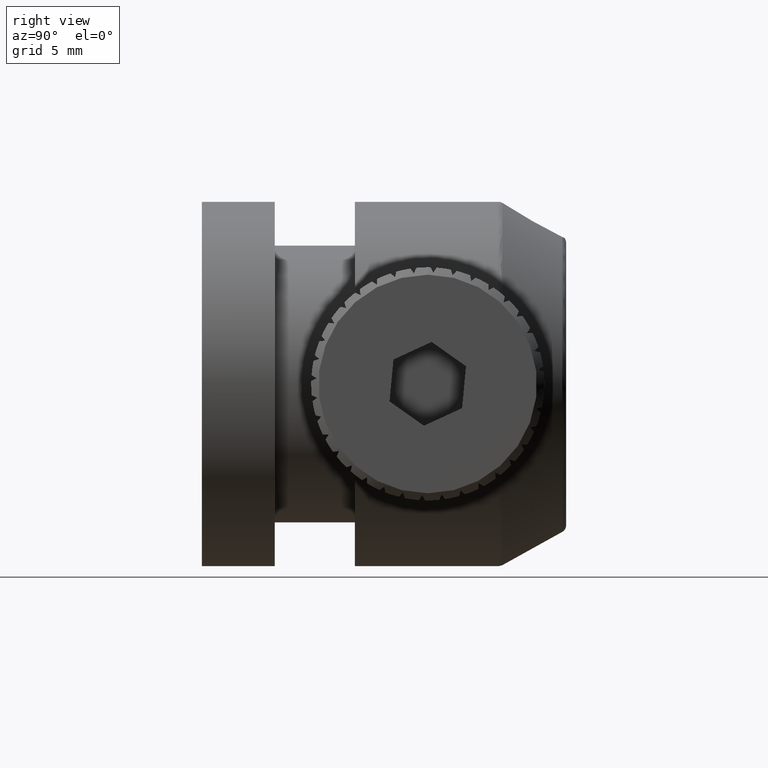
[diagram: clean part render]
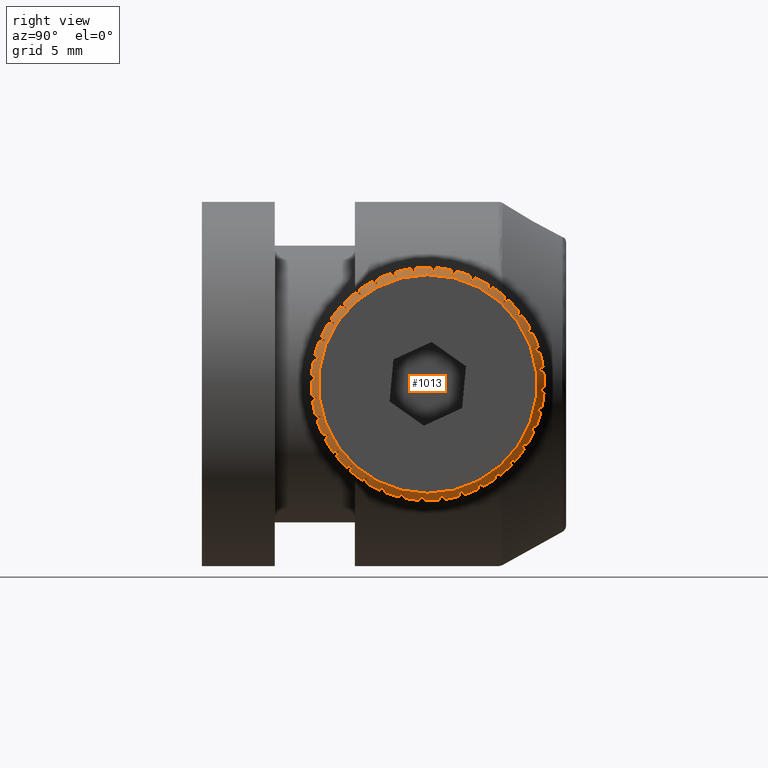
[diagram: same view with one face highlighted and labeled with its STEP entity id]
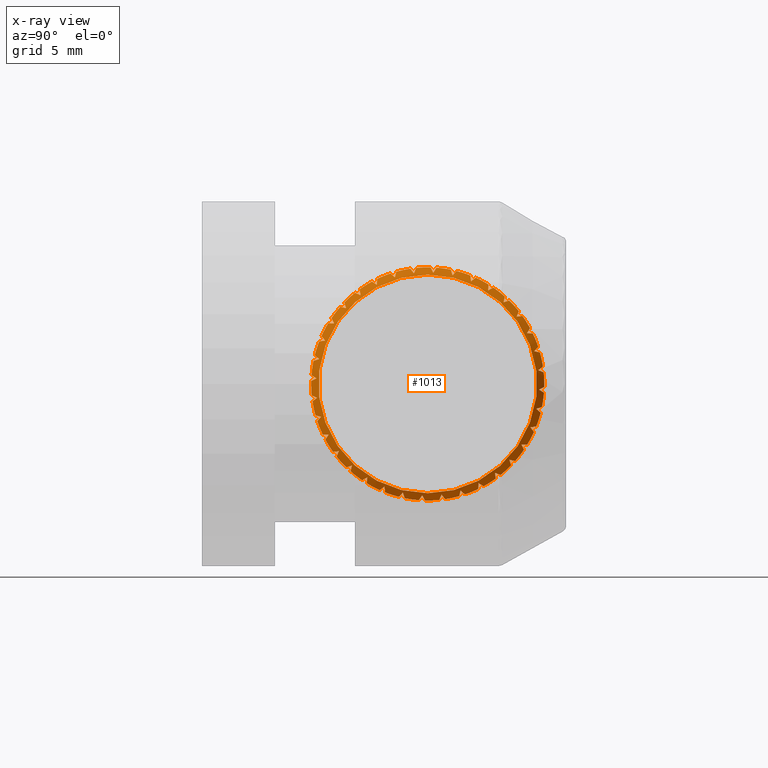
[diagram: x-ray of the same camera — body ghosted, the highlighted face saturated]
A machine part, right view. The second image highlights one B-rep face of the part: STEP entity #1013.
The next image is the same camera in x-ray: the body ghosted, the highlighted face saturated — about 0% of this face is hidden behind the body in this view.
In plain terms, the highlighted conical surface has half-angle 45 deg.
Its self-contained STEP definition (entity closure, byte-faithful):
#2 = DIRECTION ( 'NONE',  ( 0.000000000000000000, -0.9987437986324327888, 0.05010813001159154095 ) ) ;
#3 = DIRECTION ( 'NONE',  ( 0.000000000000000000, 0.000000000000000000, 1.000000000000000000 ) ) ;
#7 = ORIENTED_EDGE ( 'NONE', *, *, #3084, .T. ) ;
#8 = CARTESIAN_POINT ( 'NONE',  ( 19.63128916436953375, 7.511606756998201462, -8.157869546095676938 ) ) ;
#11 = EDGE_CURVE ( 'NONE', #5129, #717, #249, .T. ) ;
#41 = EDGE_CURVE ( 'NONE', #3981, #4153, #1928, .T. ) ;
#42 = EDGE_CURVE ( 'NONE', #3633, #1155, #1873, .T. ) ;
#45 = VERTEX_POINT ( 'NONE', #3514 ) ;
#50 = CARTESIAN_POINT ( 'NONE',  ( 19.74840920223334706, 7.399608466700815512, -8.085491698851626552 ) ) ;
#57 = CARTESIAN_POINT ( 'NONE',  ( 19.63128916436953375, -3.522783558870465903, -4.599772829693118403 ) ) ;
#69 = ORIENTED_EDGE ( 'NONE', *, *, #42, .T. ) ;
#71 = ORIENTED_EDGE ( 'NONE', *, *, #3028, .T. ) ;
#78 = ORIENTED_EDGE ( 'NONE', *, *, #722, .T. ) ;
#82 = CARTESIAN_POINT ( 'NONE',  ( 19.86510093156583778, 3.230241731097291513, -8.884725294482635150 ) ) ;
#84 = DIRECTION ( 'NONE',  ( 1.000000000000000000, 5.563119965979017169E-18, 1.108828360943316457E-16 ) ) ;
#87 = CARTESIAN_POINT ( 'NONE',  ( 19.74840920222374763, 8.550717499419480561, -7.335053305563688397 ) ) ;
#94 = VERTEX_POINT ( 'NONE', #5106 ) ;
#101 = ORIENTED_EDGE ( 'NONE', *, *, #1097, .F. ) ;
#107 = VERTEX_POINT ( 'NONE', #1543 ) ;
#114 = DIRECTION ( 'NONE',  ( 1.000000000000000000, 5.563119965979017169E-18, 1.108828360943316457E-16 ) ) ;
#115 = EDGE_CURVE ( 'NONE', #591, #2580, #890, .T. ) ;
#119 = ORIENTED_EDGE ( 'NONE', *, *, #228, .T. ) ;
#124 = CARTESIAN_POINT ( 'NONE',  ( 19.86510093795038046, 7.287292839405780320, -8.012908796593322336 ) ) ;
#131 = CARTESIAN_POINT ( 'NONE',  ( 19.63128916436953375, 11.68387826402858742, -1.332025241423718365 ) ) ;
#136 = EDGE_CURVE ( 'NONE', #863, #2486, #3303, .T. ) ;
#142 = CARTESIAN_POINT ( 'NONE',  ( 19.86510093161914980, -1.646618315368481467, -6.777646115535848281 ) ) ;
#149 = B_SPLINE_CURVE_WITH_KNOTS ( 'NONE', 3,
 ( #4528, #3688, #142, #1711 ),
 .UNSPECIFIED., .F., .F.,
 ( 4, 4 ),
 ( 2.168404344971008868E-19, 0.0005324410434595347246 ),
 .UNSPECIFIED. ) ;
#153 = CARTESIAN_POINT ( 'NONE',  ( 19.63128916436953375, -3.339827328520108551, -4.956873093793427110 ) ) ;
#154 = CIRCLE ( 'NONE', #3053, 8.000000000000000000 ) ;
#155 = EDGE_CURVE ( 'NONE', #166, #1083, #3972, .T. ) ;
#162 = CARTESIAN_POINT ( 'NONE',  ( 19.63128916436953375, 9.684024988557837332, -6.425835029525336139 ) ) ;
#165 = CARTESIAN_POINT ( 'NONE',  ( 19.63128916436953020, 3.686387940390166040, -1.131654277185411006 ) ) ;
#166 = VERTEX_POINT ( 'NONE', #482 ) ;
#167 = CARTESIAN_POINT ( 'NONE',  ( 19.63128916436953375, -3.522783558870465903, -4.599772829693118403 ) ) ;
#169 = CARTESIAN_POINT ( 'NONE',  ( 19.63128916436953375, 10.18380345908081885, 3.535635255024667689 ) ) ;
#171 = DIRECTION ( 'NONE',  ( 0.000000000000000000, -0.9987437986324324557, 0.05010813001159952762 ) ) ;
#180 = DIRECTION ( 'NONE',  ( 1.000000000000000000, 5.563119965979017169E-18, 1.108828360943316457E-16 ) ) ;
#185 = CARTESIAN_POINT ( 'NONE',  ( 19.98128916436953162, 11.32677799992827872, -1.514981471774099697 ) ) ;
#186 = EDGE_CURVE ( 'NONE', #2107, #1009, #1547, .T. ) ;
#190 = CARTESIAN_POINT ( 'NONE',  ( 19.74840920222375118, -3.627944544297897256, 1.808482091687252158 ) ) ;
#202 = CARTESIAN_POINT ( 'NONE',  ( 19.63128916436953375, 11.13303967641280323, -4.055244180436377022 ) ) ;
#209 = CARTESIAN_POINT ( 'NONE',  ( 19.74840920370539621, 0.2115874785626188359, 5.944334932201319255 ) ) ;
#211 = B_SPLINE_CURVE_WITH_KNOTS ( 'NONE', 3,
 ( #1995, #3925, #396, #1972 ),
 .UNSPECIFIED., .F., .F.,
 ( 4, 4 ),
 ( 1.748223473168675632E-18, 0.0005324410433379181407 ),
 .UNSPECIFIED. ) ;
#212 = DIRECTION ( 'NONE',  ( 0.000000000000000000, 0.000000000000000000, -1.000000000000000000 ) ) ;
#214 = CARTESIAN_POINT ( 'NONE',  ( 19.63128916436953375, -3.760263795632454720, 1.791935626065594089 ) ) ;
#218 = CARTESIAN_POINT ( 'NONE',  ( 19.98128912648216371, 4.069715115030570374, 6.508735821288547108 ) ) ;
#221 = AXIS2_PLACEMENT_3D ( 'NONE', #1098, #318, #2 ) ;
#223 = EDGE_CURVE ( 'NONE', #969, #3271, #4420, .T. ) ;
#228 = EDGE_CURVE ( 'NONE', #1665, #4490, #4037, .T. ) ;
#236 = CARTESIAN_POINT ( 'NONE',  ( 19.86510093795038046, 6.643117673923118360, 6.049984055080321887 ) ) ;
#245 = CARTESIAN_POINT ( 'NONE',  ( 19.74840920222374763, 9.554026339947387925, -6.396127771863911349 ) ) ;
#246 = CARTESIAN_POINT ( 'NONE',  ( 19.63128916436953375, 8.195654322734725383, 5.476410242252722327 ) ) ;
#249 = CIRCLE ( 'NONE', #3135, 8.000000000000000000 ) ;
#267 = CARTESIAN_POINT ( 'NONE',  ( 19.98128912648216371, 8.891181680890658967, 4.474826142696889164 ) ) ;
#269 = CARTESIAN_POINT ( 'NONE',  ( 19.63128916436953375, 0.3931058083658235947, -8.422353338241844511 ) ) ;
#272 = CARTESIAN_POINT ( 'NONE',  ( 19.98128912648216371, 3.303060765749759486, -8.772044375659374893 ) ) ;
#289 = CARTESIAN_POINT ( 'NONE',  ( 19.63128916436953375, 1.709154769786467742, -8.883463678161701793 ) ) ;
#291 = CARTESIAN_POINT ( 'NONE',  ( 19.86510093156584134, 9.019394196207162651, 4.514337561183041636 ) ) ;
#293 = CARTESIAN_POINT ( 'NONE',  ( 19.63128916436953375, 11.13303967641280323, -4.055244180436377022 ) ) ;
#307 = CIRCLE ( 'NONE', #3859, 7.999999999999998224 ) ;
#312 = CARTESIAN_POINT ( 'NONE',  ( 19.74840920223335416, -3.806599043322433040, -3.580941444075742108 ) ) ;
#318 = DIRECTION ( 'NONE',  ( 1.000000000000000000, 5.563119965979017169E-18, 1.108828360943316457E-16 ) ) ;
#319 = CARTESIAN_POINT ( 'NONE',  ( 19.74840920367864427, 10.89659771520826936, -4.318617807634383077 ) ) ;
#337 = ORIENTED_EDGE ( 'NONE', *, *, #186, .T. ) ;
#343 = CARTESIAN_POINT ( 'NONE',  ( 19.98128912648216371, 9.292868360272450445, -6.336448017685927248 ) ) ;
#349 = CARTESIAN_POINT ( 'NONE',  ( 19.63128916436953375, 3.486016976151777413, -9.129144600823829947 ) ) ;
#353 = VERTEX_POINT ( 'NONE', #3953 ) ;
#354 = CARTESIAN_POINT ( 'NONE',  ( 19.74840920223335416, -0.02683258592044102109, 5.822183144480820083 ) ) ;
#356 = EDGE_CURVE ( 'NONE', #4627, #1067, #211, .T. ) ;
#360 = CARTESIAN_POINT ( 'NONE',  ( 19.98128912648216371, 0.1981639623526796901, 5.676781230236321640 ) ) ;
#362 = ORIENTED_EDGE ( 'NONE', *, *, #403, .T. ) ;
#371 = ORIENTED_EDGE ( 'NONE', *, *, #3576, .T. ) ;
#377 = CIRCLE ( 'NONE', #468, 8.000000000000000000 ) ;
#382 = CARTESIAN_POINT ( 'NONE',  ( 19.98128912648216371, -1.518405800110361525, -6.738134697067681422 ) ) ;
#386 = CARTESIAN_POINT ( 'NONE',  ( 19.63128916436953375, 11.43819734136645927, -3.108887447789086433 ) ) ;
#389 = EDGE_CURVE ( 'NONE', #1430, #4484, #3120, .T. ) ;
#391 = DIRECTION ( 'NONE',  ( 0.000000000000000000, -0.9987437986324323447, 0.05010813001160040886 ) ) ;
#396 = CARTESIAN_POINT ( 'NONE',  ( 19.86510093156584489, 11.12790275565324549, 1.091414956492768873 ) ) ;
#403 = EDGE_CURVE ( 'NONE', #1822, #1169, #763, .T. ) ;
#406 = B_SPLINE_CURVE_WITH_KNOTS ( 'NONE', 3,
 ( #2353, #319, #4675, #3890 ),
 .UNSPECIFIED., .F., .F.,
 ( 4, 4 ),
 ( 8.673617379884035472E-19, 0.0005324410433379180322 ),
 .UNSPECIFIED. ) ;
#409 = DIRECTION ( 'NONE',  ( 1.000000000000000000, 5.563119965979017169E-18, 1.108828360943316457E-16 ) ) ;
#417 = VERTEX_POINT ( 'NONE', #4080 ) ;
#419 = CARTESIAN_POINT ( 'NONE',  ( 19.63128916436953375, -2.811027578300513419, -5.798943809395457727 ) ) ;
#425 = CARTESIAN_POINT ( 'NONE',  ( 19.63128916436953375, 2.494965198841937681, 6.779130250971173943 ) ) ;
#428 = CARTESIAN_POINT ( 'NONE',  ( 19.86510092866665289, -2.050883474437107612, 4.103027787756638567 ) ) ;
#440 = B_SPLINE_CURVE_WITH_KNOTS ( 'NONE', 3,
 ( #4132, #3346, #3045, #2204 ),
 .UNSPECIFIED., .F., .F.,
 ( 4, 4 ),
 ( 3.903127820947815962E-18, 0.0005324410434595345078 ),
 .UNSPECIFIED. ) ;
#441 = CARTESIAN_POINT ( 'NONE',  ( 19.98128912648216371, 9.785664276902354075, 3.485848159255656942 ) ) ;
#445 = CARTESIAN_POINT ( 'NONE',  ( 19.98128912648216371, -3.122047567031557946, -4.619878255222925389 ) ) ;
#447 = CARTESIAN_POINT ( 'NONE',  ( 19.63128916436953375, -0.4858835666402301912, -7.957498581857343822 ) ) ;
#451 = CARTESIAN_POINT ( 'NONE',  ( 19.86510093795038401, 2.656171835621720323, 6.566191826115311159 ) ) ;
#463 = CARTESIAN_POINT ( 'NONE',  ( 19.63128916436953375, 11.64695960462455737, -0.3383707348196278164 ) ) ;
#465 = EDGE_CURVE ( 'NONE', #3440, #1371, #559, .T. ) ;
#468 = AXIS2_PLACEMENT_3D ( 'NONE', #5019, #1783, #3343 ) ;
#474 = ORIENTED_EDGE ( 'NONE', *, *, #4403, .T. ) ;
#475 = CARTESIAN_POINT ( 'NONE',  ( 19.63128916436953375, -3.760263795632454720, 1.791935626065594089 ) ) ;
#482 = CARTESIAN_POINT ( 'NONE',  ( 19.63128916436953375, -2.568841054084200159, -6.118848902091001740 ) ) ;
#489 = EDGE_CURVE ( 'NONE', #1083, #1223, #149, .T. ) ;
#492 = ORIENTED_EDGE ( 'NONE', *, *, #1244, .T. ) ;
#495 = CARTESIAN_POINT ( 'NONE',  ( 19.63128916436953020, 4.479671482755935408, -9.092225941419807000 ) ) ;
#504 = CARTESIAN_POINT ( 'NONE',  ( 19.74840920367864427, 0.4994244099411767612, -8.341864052003506558 ) ) ;
#509 = CARTESIAN_POINT ( 'NONE',  ( 19.74840920222374763, 6.135675107288526497, -8.624641260905447027 ) ) ;
#510 = CARTESIAN_POINT ( 'NONE',  ( 19.63128916436953375, -3.604311120666254364, 2.161627854838956697 ) ) ;
#512 = CARTESIAN_POINT ( 'NONE',  ( 19.98128912648216371, 5.939345539578002153, -8.442378087858234181 ) ) ;
#513 = VERTEX_POINT ( 'NONE', #3743 ) ;
#516 = CARTESIAN_POINT ( 'NONE',  ( 19.98128912648216726, 1.433430341202374114, 6.179069533487417942 ) ) ;
#517 = CARTESIAN_POINT ( 'NONE',  ( 19.63128916436953375, 11.52758436295204802, -2.717730776854552666 ) ) ;
#519 = CIRCLE ( 'NONE', #1834, 7.999999999999995559 ) ;
#523 = ORIENTED_EDGE ( 'NONE', *, *, #1623, .T. ) ;
#531 = ORIENTED_EDGE ( 'NONE', *, *, #4849, .T. ) ;
#542 = ORIENTED_EDGE ( 'NONE', *, *, #2095, .T. ) ;
#548 = CARTESIAN_POINT ( 'NONE',  ( 19.63128916436953020, 3.686387940390166040, -1.131654277185411006 ) ) ;
#552 = CARTESIAN_POINT ( 'NONE',  ( 20.13128916436953020, 3.686387940390166484, 6.368345722814594545 ) ) ;
#557 = B_SPLINE_CURVE_WITH_KNOTS ( 'NONE', 3,
 ( #167, #3635, #4002, #445 ),
 .UNSPECIFIED., .F., .F.,
 ( 4, 4 ),
 ( 0.000000000000000000, 0.0005324410434595245331 ),
 .UNSPECIFIED. ) ;
#559 = CIRCLE ( 'NONE', #4119, 7.999999999999997335 ) ;
#562 = VERTEX_POINT ( 'NONE', #1103 ) ;
#566 = CARTESIAN_POINT ( 'NONE',  ( 19.98128912648216371, -0.4657781800462784672, -7.556762609966778399 ) ) ;
#569 = CARTESIAN_POINT ( 'NONE',  ( 19.63128916436953375, 3.686387940390166040, -1.131654277185411006 ) ) ;
#573 = CARTESIAN_POINT ( 'NONE',  ( 19.98128912648216371, 8.891181680890658967, 4.474826142696889164 ) ) ;
#577 = CARTESIAN_POINT ( 'NONE',  ( 19.98128912648216371, -3.362124639860407882, 1.841722756714949005 ) ) ;
#586 = EDGE_CURVE ( 'NONE', #4271, #94, #984, .T. ) ;
#591 = VERTEX_POINT ( 'NONE', #272 ) ;
#609 = VERTEX_POINT ( 'NONE', #4630 ) ;
#611 = CARTESIAN_POINT ( 'NONE',  ( 19.63128916436953375, 5.272464440059278168, 6.709542145376473421 ) ) ;
#612 = VERTEX_POINT ( 'NONE', #2602 ) ;
#616 = B_SPLINE_CURVE_WITH_KNOTS ( 'NONE', 3,
 ( #4057, #4451, #895, #2474 ),
 .UNSPECIFIED., .F., .F.,
 ( 4, 4 ),
 ( 0.000000000000000000, 0.0005324410434595244247 ),
 .UNSPECIFIED. ) ;
#625 = CARTESIAN_POINT ( 'NONE',  ( 19.86510092866664934, 8.921070005332165209, 4.605617137641913494 ) ) ;
#631 = DIRECTION ( 'NONE',  ( 1.000000000000000000, 5.563119965979017169E-18, 1.108828360943316457E-16 ) ) ;
#645 = CARTESIAN_POINT ( 'NONE',  ( 19.63128916436953375, 10.51223224506211196, -5.303925784215786088 ) ) ;
#647 = CARTESIAN_POINT ( 'NONE',  ( 19.74840920367864427, -0.7041982409566063250, -7.678914354917245610 ) ) ;
#648 = AXIS2_PLACEMENT_3D ( 'NONE', #861, #84, #4910 ) ;
#649 = CARTESIAN_POINT ( 'NONE',  ( 19.63128916436953375, 10.89555943965077667, 2.336464275322334139 ) ) ;
#651 = CARTESIAN_POINT ( 'NONE',  ( 19.98128912648216371, -2.412888396122048640, -5.749156713626443427 ) ) ;
#652 = EDGE_CURVE ( 'NONE', #2545, #4271, #4172, .T. ) ;
#655 = EDGE_CURVE ( 'NONE', #2202, #4553, #4105, .T. ) ;
#659 = ORIENTED_EDGE ( 'NONE', *, *, #2483, .T. ) ;
#662 = CARTESIAN_POINT ( 'NONE',  ( 19.63128916436953375, 3.886758904628552447, 6.865836046453006603 ) ) ;
#664 = EDGE_CURVE ( 'NONE', #4195, #1297, #2055, .T. ) ;
#667 = B_SPLINE_CURVE_WITH_KNOTS ( 'NONE', 3,
 ( #3099, #2667, #354, #4275 ),
 .UNSPECIFIED., .F., .F.,
 ( 4, 4 ),
 ( 0.000000000000000000, 0.0005324410367674441581 ),
 .UNSPECIFIED. ) ;
#677 = EDGE_CURVE ( 'NONE', #1793, #3633, #2462, .T. ) ;
#682 = CARTESIAN_POINT ( 'NONE',  ( 19.63128916436953730, -4.154808482171700845, 0.4544222224837770607 ) ) ;
#696 = ORIENTED_EDGE ( 'NONE', *, *, #2686, .T. ) ;
#705 = CARTESIAN_POINT ( 'NONE',  ( 19.98128912648216371, 2.737151696651835220, 6.459225193155970324 ) ) ;
#716 = AXIS2_PLACEMENT_3D ( 'NONE', #4992, #1438, #4628 ) ;
#717 = VERTEX_POINT ( 'NONE', #752 ) ;
#722 = EDGE_CURVE ( 'NONE', #4336, #2202, #4605, .T. ) ;
#730 = ORIENTED_EDGE ( 'NONE', *, *, #3922, .T. ) ;
#743 = CARTESIAN_POINT ( 'NONE',  ( 19.98128912648216371, -1.920092479492085724, 4.073139463315133213 ) ) ;
#748 = B_SPLINE_CURVE_WITH_KNOTS ( 'NONE', 3,
 ( #3676, #2829, #962, #651 ),
 .UNSPECIFIED., .F., .F.,
 ( 4, 4 ),
 ( 4.336808689942017736E-19, 0.0005324410433379238869 ),
 .UNSPECIFIED. ) ;
#749 = B_SPLINE_CURVE_WITH_KNOTS ( 'NONE', 3,
 ( #169, #3320, #2938, #2654 ),
 .UNSPECIFIED., .F., .F.,
 ( 4, 4 ),
 ( 1.734723475976807094E-18, 0.0005324410434595243163 ),
 .UNSPECIFIED. ) ;
#752 = CARTESIAN_POINT ( 'NONE',  ( 19.63128916436953375, 11.64695960462455737, -0.3383707348196278164 ) ) ;
#763 = B_SPLINE_CURVE_WITH_KNOTS ( 'NONE', 3,
 ( #2051, #504, #948, #1313 ),
 .UNSPECIFIED., .F., .F.,
 ( 4, 4 ),
 ( 5.421010862427522170E-20, 0.0005324410433379172733 ),
 .UNSPECIFIED. ) ;
#764 = CIRCLE ( 'NONE', #3332, 7.999999999999995559 ) ;
#765 = DIRECTION ( 'NONE',  ( 0.000000000000000000, -0.9987437986324323447, 0.05010813001160040192 ) ) ;
#767 = CARTESIAN_POINT ( 'NONE',  ( 19.86510093156583778, 4.583478270447426617, -8.846147682667346857 ) ) ;
#774 = CARTESIAN_POINT ( 'NONE',  ( 19.86510093795038046, -1.548294143583716087, -6.868925695930495401 ) ) ;
#775 = CARTESIAN_POINT ( 'NONE',  ( 19.63128916436953375, 3.686387940390166040, -1.131654277185411006 ) ) ;
#777 = B_SPLINE_CURVE_WITH_KNOTS ( 'NONE', 3,
 ( #2139, #987, #2108, #153 ),
 .UNSPECIFIED., .F., .F.,
 ( 4, 4 ),
 ( 0.000000000000000000, 0.0005324410367674391707 ),
 .UNSPECIFIED. ) ;
#781 = CARTESIAN_POINT ( 'NONE',  ( 19.63128916436953375, -0.9809015918198559225, 5.365761241505285994 ) ) ;
#784 = EDGE_CURVE ( 'NONE', #1024, #2022, #3422, .T. ) ;
#793 = CARTESIAN_POINT ( 'NONE',  ( 19.63128916436953375, 10.71260320930042198, 2.693564539422647730 ) ) ;
#796 = CARTESIAN_POINT ( 'NONE',  ( 19.98128912648216371, 10.11149627317154120, -5.283820397621840748 ) ) ;
#805 = CARTESIAN_POINT ( 'NONE',  ( 19.86510093795038046, 9.837810167887369062, 3.609462092582339299 ) ) ;
#813 = AXIS2_PLACEMENT_3D ( 'NONE', #4127, #2251, #3790 ) ;
#821 = CARTESIAN_POINT ( 'NONE',  ( 19.63128916436953020, 3.686387940390166040, -1.131654277185411006 ) ) ;
#825 = B_SPLINE_CURVE_WITH_KNOTS ( 'NONE', 3,
 ( #1481, #4549, #997, #3042 ),
 .UNSPECIFIED., .F., .F.,
 ( 4, 4 ),
 ( 0.000000000000000000, 0.0005324410367238007922 ),
 .UNSPECIFIED. ) ;
#830 = ORIENTED_EDGE ( 'NONE', *, *, #1400, .T. ) ;
#833 = CARTESIAN_POINT ( 'NONE',  ( 19.63128916436953020, 3.085280960567597042, -9.109039212037723487 ) ) ;
#838 = CARTESIAN_POINT ( 'NONE',  ( 19.63128916436953375, 5.663621110993812380, 6.620155123790889995 ) ) ;
#840 = EDGE_CURVE ( 'NONE', #3271, #4195, #3958, .T. ) ;
#849 = CARTESIAN_POINT ( 'NONE',  ( 19.98128912648216371, 5.939345539578002153, -8.442378087858234181 ) ) ;
#852 = DIRECTION ( 'NONE',  ( 1.000000000000000000, 5.563119965979017169E-18, 1.108828360943316457E-16 ) ) ;
#854 = CARTESIAN_POINT ( 'NONE',  ( 19.63128916436953375, -2.311249107777473277, 4.162526475154547434 ) ) ;
#860 = ORIENTED_EDGE ( 'NONE', *, *, #356, .T. ) ;
#861 = CARTESIAN_POINT ( 'NONE',  ( 19.63128916436953375, 3.686387940390166040, -1.131654277185411006 ) ) ;
#863 = VERTEX_POINT ( 'NONE', #4026 ) ;
#875 = CARTESIAN_POINT ( 'NONE',  ( 19.74840920222375118, 10.64022536206229930, 2.581566249134436219 ) ) ;
#879 = EDGE_CURVE ( 'NONE', #2997, #3397, #154, .T. ) ;
#880 = CARTESIAN_POINT ( 'NONE',  ( 19.86510093156584134, 8.320537658450092522, -7.364056378631654631 ) ) ;
#884 = CARTESIAN_POINT ( 'NONE',  ( 19.98128916436953162, 11.32677799992827872, -1.514981471774099697 ) ) ;
#889 = ORIENTED_EDGE ( 'NONE', *, *, #784, .T. ) ;
#890 = B_SPLINE_CURVE_WITH_KNOTS ( 'NONE', 3,
 ( #1664, #4457, #900, #4924 ),
 .UNSPECIFIED., .F., .F.,
 ( 4, 4 ),
 ( 0.000000000000000000, 0.0005324410367237955881 ),
 .UNSPECIFIED. ) ;
#895 = CARTESIAN_POINT ( 'NONE',  ( 19.86510093161914625, 7.167889243954290279, -8.074083840095067188 ) ) ;
#900 = CARTESIAN_POINT ( 'NONE',  ( 19.74840920222374763, 3.425212535200826469, -9.010464401300287918 ) ) ;
#902 = CARTESIAN_POINT ( 'NONE',  ( 19.63128916436953375, 6.233403610612108459, -8.715367825022235948 ) ) ;
#904 = EDGE_CURVE ( 'NONE', #1550, #4243, #1882, .T. ) ;
#906 = CARTESIAN_POINT ( 'NONE',  ( 19.63128916436953375, 7.511606756998201462, -8.157869546095676938 ) ) ;
#908 = ORIENTED_EDGE ( 'NONE', *, *, #1474, .T. ) ;
#909 = CARTESIAN_POINT ( 'NONE',  ( 19.63128916436953375, -1.607792811949777523, -7.129291325353065645 ) ) ;
#912 = CARTESIAN_POINT ( 'NONE',  ( 19.74840920223335061, 9.889786968764175512, 3.732675281833850889 ) ) ;
#914 = EDGE_CURVE ( 'NONE', #4519, #1665, #1017, .T. ) ;
#928 = CARTESIAN_POINT ( 'NONE',  ( 19.63128916436953375, 4.877810681938444581, -9.042438805341991070 ) ) ;
#930 = DIRECTION ( 'NONE',  ( 1.000000000000000000, 5.563119965979017169E-18, 1.108828360943316457E-16 ) ) ;
#931 = CARTESIAN_POINT ( 'NONE',  ( 19.74840920223335061, 5.311736524556152972, 6.582106384381016362 ) ) ;
#936 = DIRECTION ( 'NONE',  ( 1.000000000000000000, 5.563119965979017169E-18, 1.108828360943316457E-16 ) ) ;
#943 = CARTESIAN_POINT ( 'NONE',  ( 19.98128912648216371, -0.9311144960508456192, 4.967622059326817663 ) ) ;
#948 = CARTESIAN_POINT ( 'NONE',  ( 19.86510093156584489, 0.6060442529681487889, -8.261146708688917428 ) ) ;
#953 = DIRECTION ( 'NONE',  ( 1.000000000000000000, 5.563119965979017169E-18, 1.108828360943316457E-16 ) ) ;
#956 = CARTESIAN_POINT ( 'NONE',  ( 19.98128912648216371, 2.737151696651835220, 6.459225193155970324 ) ) ;
#957 = CARTESIAN_POINT ( 'NONE',  ( 19.86510092866664934, -0.4725008157533719388, -7.690756648885602509 ) ) ;
#962 = CARTESIAN_POINT ( 'NONE',  ( 19.86510093156584489, -2.546014161056087577, -5.765803995245319946 ) ) ;
#969 = VERTEX_POINT ( 'NONE', #3678 ) ;
#980 = ORIENTED_EDGE ( 'NONE', *, *, #3938, .T. ) ;
#984 = CIRCLE ( 'NONE', #4623, 7.999999999999997335 ) ;
#985 = CARTESIAN_POINT ( 'NONE',  ( 19.63128916436953375, 3.686387940390166040, -1.131654277185411006 ) ) ;
#986 = ORIENTED_EDGE ( 'NONE', *, *, #4237, .T. ) ;
#987 = CARTESIAN_POINT ( 'NONE',  ( 19.86510093795038401, -3.194866579017751285, -4.732559176201007745 ) ) ;
#995 = CARTESIAN_POINT ( 'NONE',  ( 19.98128916436953872, -3.954002119147937755, -0.7483270825966681361 ) ) ;
#996 = B_SPLINE_CURVE_WITH_KNOTS ( 'NONE', 3,
 ( #1437, #4129, #291, #573 ),
 .UNSPECIFIED., .F., .F.,
 ( 4, 4 ),
 ( 1.734723475976807094E-18, 0.0005324410433379129365 ),
 .UNSPECIFIED. ) ;
#997 = CARTESIAN_POINT ( 'NONE',  ( 19.74840920222375118, -2.517011087988122675, -5.995983836214707985 ) ) ;
#998 = VERTEX_POINT ( 'NONE', #2515 ) ;
#1004 = DIRECTION ( 'NONE',  ( 0.000000000000000000, -0.9987437986324323447, 0.05010813001160039498 ) ) ;
#1007 = CARTESIAN_POINT ( 'NONE',  ( 19.74840920223335061, -3.006274076081764779, 3.033935320609116637 ) ) ;
#1009 = VERTEX_POINT ( 'NONE', #4520 ) ;
#1010 = DIRECTION ( 'NONE',  ( 0.000000000000000000, -0.9987437986324323447, 0.05010813001160217828 ) ) ;
#1011 = ORIENTED_EDGE ( 'NONE', *, *, #4799, .T. ) ;
#1013 = ADVANCED_FACE ( 'NONE', ( #4233, #1383 ), #1072, .T. ) ;
#1015 = ORIENTED_EDGE ( 'NONE', *, *, #1918, .T. ) ;
#1017 = B_SPLINE_CURVE_WITH_KNOTS ( 'NONE', 3,
 ( #943, #3634, #1258, #1281 ),
 .UNSPECIFIED., .F., .F.,
 ( 4, 4 ),
 ( 0.000000000000000000, 0.0005324410367237999249 ),
 .UNSPECIFIED. ) ;
#1023 = CARTESIAN_POINT ( 'NONE',  ( 19.98128912648216726, 7.838554060826563585, 5.293454055595976371 ) ) ;
#1024 = VERTEX_POINT ( 'NONE', #1458 ) ;
#1029 = CARTESIAN_POINT ( 'NONE',  ( 19.63128916436953375, -4.224396587766417355, -2.323077018733668453 ) ) ;
#1033 = DIRECTION ( 'NONE',  ( 1.000000000000000000, 5.563119965979017169E-18, 1.108828360943316457E-16 ) ) ;
#1037 = ORIENTED_EDGE ( 'NONE', *, *, #3798, .T. ) ;
#1043 = CARTESIAN_POINT ( 'NONE',  ( 19.63128916436953375, -0.9809015918198559225, 5.365761241505285994 ) ) ;
#1048 = DIRECTION ( 'NONE',  ( -1.000000000000000000, -5.563119965979017169E-18, -1.108828360943316457E-16 ) ) ;
#1050 = AXIS2_PLACEMENT_3D ( 'NONE', #3307, #180, #4878 ) ;
#1055 = CARTESIAN_POINT ( 'NONE',  ( 19.74840920367864783, 5.879665743960729607, -8.703536078802430964 ) ) ;
#1059 = CARTESIAN_POINT ( 'NONE',  ( 19.63128916436953020, 10.29445245982829249, -5.640920659529990111 ) ) ;
#1061 = B_SPLINE_CURVE_WITH_KNOTS ( 'NONE', 3,
 ( #1176, #5121, #2313, #4310 ),
 .UNSPECIFIED., .F., .F.,
 ( 4, 4 ),
 ( 0.000000000000000000, 0.0005324410367238000333 ),
 .UNSPECIFIED. ) ;
#1067 = VERTEX_POINT ( 'NONE', #2173 ) ;
#1071 = EDGE_CURVE ( 'NONE', #1229, #166, #825, .T. ) ;
#1072 = CONICAL_SURFACE ( 'NONE', #813, 8.000000000000003553, 0.7853981633974457255 ) ;
#1083 = VERTEX_POINT ( 'NONE', #3423 ) ;
#1084 = CARTESIAN_POINT ( 'NONE',  ( 19.63128916436953375, -3.139456364281753675, 3.040617229845004488 ) ) ;
#1095 = VERTEX_POINT ( 'NONE', #4595 ) ;
#1097 = EDGE_CURVE ( 'NONE', #3799, #609, #1801, .T. ) ;
#1098 = CARTESIAN_POINT ( 'NONE',  ( 19.63128916436953020, 3.686387940390166040, -1.131654277185411006 ) ) ;
#1099 = CARTESIAN_POINT ( 'NONE',  ( 20.13128916436953020, 3.686387940390166484, -1.131654277185411006 ) ) ;
#1102 = B_SPLINE_CURVE_WITH_KNOTS ( 'NONE', 3,
 ( #3648, #124, #50, #906 ),
 .UNSPECIFIED., .F., .F.,
 ( 4, 4 ),
 ( 0.000000000000000000, 0.0005324410367674366771 ),
 .UNSPECIFIED. ) ;
#1103 = CARTESIAN_POINT ( 'NONE',  ( 19.63128916436953375, 2.494965198841937681, 6.779130250971173943 ) ) ;
#1104 = CARTESIAN_POINT ( 'NONE',  ( 19.98128912648216371, 10.49482344781186960, 2.356569700852137572 ) ) ;
#1108 = CARTESIAN_POINT ( 'NONE',  ( 19.63128916436953375, 3.686387940390166040, -1.131654277185411006 ) ) ;
#1109 = CIRCLE ( 'NONE', #1594, 7.999999999999994671 ) ;
#1117 = CARTESIAN_POINT ( 'NONE',  ( 19.86510093156584489, -1.959603897978240195, 4.201351978631634232 ) ) ;
#1121 = CARTESIAN_POINT ( 'NONE',  ( 19.63128916436953375, -3.339827328520108551, -4.956873093793427110 ) ) ;
#1122 = CARTESIAN_POINT ( 'NONE',  ( 19.86510093161914625, 6.766731627763441281, 5.997838154281237344 ) ) ;
#1123 = EDGE_CURVE ( 'NONE', #4039, #4053, #2179, .T. ) ;
#1126 = B_SPLINE_CURVE_WITH_KNOTS ( 'NONE', 3,
 ( #566, #957, #2143, #3730 ),
 .UNSPECIFIED., .F., .F.,
 ( 4, 4 ),
 ( 0.000000000000000000, 0.0005324410367237929860 ),
 .UNSPECIFIED. ) ;
#1127 = CARTESIAN_POINT ( 'NONE',  ( 19.74840920367864427, 9.371763136647325965, -6.592457370053545596 ) ) ;
#1140 = VERTEX_POINT ( 'NONE', #3860 ) ;
#1145 = EDGE_CURVE ( 'NONE', #2543, #2545, #1923, .T. ) ;
#1153 = DIRECTION ( 'NONE',  ( 1.000000000000000000, 5.563119965979017169E-18, 1.108828360943316457E-16 ) ) ;
#1155 = VERTEX_POINT ( 'NONE', #5139 ) ;
#1168 = CARTESIAN_POINT ( 'NONE',  ( 19.98128912648216371, -2.412888396122048640, -5.749156713626443427 ) ) ;
#1169 = VERTEX_POINT ( 'NONE', #3081 ) ;
#1171 = CARTESIAN_POINT ( 'NONE',  ( 19.98128912648216371, 10.73490052064076039, -4.105031311085733492 ) ) ;
#1173 = DIRECTION ( 'NONE',  ( 1.000000000000000000, 5.563119965979017169E-18, 1.108828360943316457E-16 ) ) ;
#1176 = CARTESIAN_POINT ( 'NONE',  ( 19.98128912648216726, 1.433430341202374114, 6.179069533487417942 ) ) ;
#1177 = ORIENTED_EDGE ( 'NONE', *, *, #4585, .T. ) ;
#1179 = B_SPLINE_CURVE_WITH_KNOTS ( 'NONE', 3,
 ( #3808, #1802, #2218, #956 ),
 .UNSPECIFIED., .F., .F.,
 ( 4, 4 ),
 ( 0.000000000000000000, 0.0005324410434595246416 ),
 .UNSPECIFIED. ) ;
#1184 = AXIS2_PLACEMENT_3D ( 'NONE', #4856, #1702, #1629 ) ;
#1196 = CARTESIAN_POINT ( 'NONE',  ( 19.74840920370539621, 4.215117072058990111, 6.733732365961835775 ) ) ;
#1199 = CARTESIAN_POINT ( 'NONE',  ( 19.74840920223335416, -4.027372721176243786, 0.4936943069806524198 ) ) ;
#1202 = VERTEX_POINT ( 'NONE', #1549 ) ;
#1210 = CARTESIAN_POINT ( 'NONE',  ( 19.98128912648216371, -0.4657781800462784672, -7.556762609966778399 ) ) ;
#1218 = CARTESIAN_POINT ( 'NONE',  ( 19.74840920367864427, -3.523821834427917299, 2.055309253263602809 ) ) ;
#1222 = CARTESIAN_POINT ( 'NONE',  ( 19.98128912648216371, 11.14413928007852661, -2.835897667975939562 ) ) ;
#1223 = VERTEX_POINT ( 'NONE', #382 ) ;
#1229 = VERTEX_POINT ( 'NONE', #1168 ) ;
#1230 = CARTESIAN_POINT ( 'NONE',  ( 19.98128912648216726, 1.433430341202374114, 6.179069533487417942 ) ) ;
#1244 = EDGE_CURVE ( 'NONE', #3153, #2543, #4133, .T. ) ;
#1258 = CARTESIAN_POINT ( 'NONE',  ( 19.74840920222375118, -1.177941618639112287, 5.071744751192888145 ) ) ;
#1261 = CARTESIAN_POINT ( 'NONE',  ( 19.86510093161914980, 5.481910917243216552, 6.424421212265003511 ) ) ;
#1270 = VERTEX_POINT ( 'NONE', #4801 ) ;
#1272 = AXIS2_PLACEMENT_3D ( 'NONE', #2823, #4407, #1273 ) ;
#1273 = DIRECTION ( 'NONE',  ( 0.000000000000000000, -0.9987437986324327888, 0.05010813001159152708 ) ) ;
#1275 = CARTESIAN_POINT ( 'NONE',  ( 19.63128916436953375, 11.43819734136645927, -3.108887447789086433 ) ) ;
#1277 = CARTESIAN_POINT ( 'NONE',  ( 19.98128912648216371, 11.27726741073154137, -0.1824180334470129616 ) ) ;
#1281 = CARTESIAN_POINT ( 'NONE',  ( 19.63128916436953375, -1.300806684515405376, 5.123574717288964742 ) ) ;
#1286 = DIRECTION ( 'NONE',  ( 1.000000000000000000, 5.563119965979017169E-18, 1.108828360943316457E-16 ) ) ;
#1289 = ORIENTED_EDGE ( 'NONE', *, *, #914, .T. ) ;
#1297 = VERTEX_POINT ( 'NONE', #512 ) ;
#1312 = B_SPLINE_CURVE_WITH_KNOTS ( 'NONE', 3,
 ( #838, #4814, #1261, #2993 ),
 .UNSPECIFIED., .F., .F.,
 ( 4, 4 ),
 ( 1.226634733346699349E-18, 0.0005324410434595293036 ),
 .UNSPECIFIED. ) ;
#1313 = CARTESIAN_POINT ( 'NONE',  ( 19.98128912648216371, 0.7130109064898274562, -8.180166857435997585 ) ) ;
#1323 = CARTESIAN_POINT ( 'NONE',  ( 19.63128916436953375, 9.274626795826332426, 4.592993004053265160 ) ) ;
#1329 = EDGE_CURVE ( 'NONE', #4484, #2418, #3287, .T. ) ;
#1340 = ORIENTED_EDGE ( 'NONE', *, *, #11, .T. ) ;
#1343 = ORIENTED_EDGE ( 'NONE', *, *, #1819, .T. ) ;
#1345 = EDGE_CURVE ( 'NONE', #4262, #2241, #4474, .T. ) ;
#1355 = CARTESIAN_POINT ( 'NONE',  ( 19.74840920223335061, 6.626524309264120838, 6.182678207491835387 ) ) ;
#1359 = VERTEX_POINT ( 'NONE', #1625 ) ;
#1365 = CARTESIAN_POINT ( 'NONE',  ( 19.63128916436953375, 11.68387826402858742, -1.332025241423718365 ) ) ;
#1371 = VERTEX_POINT ( 'NONE', #4386 ) ;
#1383 = FACE_BOUND ( 'NONE', #4495, .T. ) ;
#1385 = CARTESIAN_POINT ( 'NONE',  ( 19.63128916436953375, 8.980568692730068747, 4.865982770982279604 ) ) ;
#1400 = EDGE_CURVE ( 'NONE', #2560, #1641, #1126, .T. ) ;
#1412 = CARTESIAN_POINT ( 'NONE',  ( 19.74840920370539621, 8.076974121709797672, 5.415605800532555136 ) ) ;
#1418 = CARTESIAN_POINT ( 'NONE',  ( 19.86510092866664579, 9.423659355217473887, -6.366336342127433490 ) ) ;
#1426 = ORIENTED_EDGE ( 'NONE', *, *, #2239, .T. ) ;
#1427 = CARTESIAN_POINT ( 'NONE',  ( 19.98128913911128990, 1.982144545304902694, -8.589405602937658202 ) ) ;
#1428 = EDGE_CURVE ( 'NONE', #2444, #4519, #3722, .T. ) ;
#1430 = VERTEX_POINT ( 'NONE', #8 ) ;
#1433 = CARTESIAN_POINT ( 'NONE',  ( 19.74840922768441942, -4.178998679826685603, -0.6029251603351797328 ) ) ;
#1434 = CIRCLE ( 'NONE', #1184, 7.999999999999998224 ) ;
#1437 = CARTESIAN_POINT ( 'NONE',  ( 19.63128916436953375, 9.274626795826332426, 4.592993004053265160 ) ) ;
#1438 = DIRECTION ( 'NONE',  ( 1.000000000000000000, 5.563119965979017169E-18, 1.108828360943316457E-16 ) ) ;
#1441 = B_SPLINE_CURVE_WITH_KNOTS ( 'NONE', 3,
 ( #3427, #5021, #1199, #682 ),
 .UNSPECIFIED., .F., .F.,
 ( 4, 4 ),
 ( 0.000000000000000000, 0.0005324410367674396044 ),
 .UNSPECIFIED. ) ;
#1442 = CARTESIAN_POINT ( 'NONE',  ( 19.63128916436953375, 5.849958485930268459, -8.833534729027759269 ) ) ;
#1453 = VERTEX_POINT ( 'NONE', #419 ) ;
#1456 = CARTESIAN_POINT ( 'NONE',  ( 19.86510093156584844, 10.62881750336081588, 2.349847026375669223 ) ) ;
#1458 = CARTESIAN_POINT ( 'NONE',  ( 19.63128916436953375, 1.522817394850118466, 6.570226174656949247 ) ) ;
#1459 = ORIENTED_EDGE ( 'NONE', *, *, #4641, .T. ) ;
#1461 = DIRECTION ( 'NONE',  ( 0.000000000000000000, -0.9987437986324327888, 0.05010813001159152708 ) ) ;
#1473 = EDGE_CURVE ( 'NONE', #3292, #2043, #1854, .T. ) ;
#1474 = EDGE_CURVE ( 'NONE', #4243, #2157, #4225, .T. ) ;
#1481 = CARTESIAN_POINT ( 'NONE',  ( 19.98128912648216371, -2.412888396122048640, -5.749156713626443427 ) ) ;
#1483 = DIRECTION ( 'NONE',  ( 0.000000000000000000, -0.9987437986324323447, 0.05010813001160040192 ) ) ;
#1485 = CARTESIAN_POINT ( 'NONE',  ( 19.63128916436953375, -4.065421460586118307, 0.8455788934183126049 ) ) ;
#1486 = CARTESIAN_POINT ( 'NONE',  ( 19.86510093156584134, 5.909457174068327490, -8.573169092448498674 ) ) ;
#1491 = CARTESIAN_POINT ( 'NONE',  ( 19.86510092866664934, 0.7296582234012902735, -8.313292599260332594 ) ) ;
#1498 = CARTESIAN_POINT ( 'NONE',  ( 19.98128912648216371, -3.624335870282658245, -3.384611876373231798 ) ) ;
#1506 = CIRCLE ( 'NONE', #2083, 7.999999999999998224 ) ;
#1507 = ORIENTED_EDGE ( 'NONE', *, *, #2274, .T. ) ;
#1511 = CARTESIAN_POINT ( 'NONE',  ( 19.86510093161914980, -3.869687549060233600, 0.6638686996677086727 ) ) ;
#1522 = B_SPLINE_CURVE_WITH_KNOTS ( 'NONE', 3,
 ( #1851, #2272, #5059, #1955 ),
 .UNSPECIFIED., .F., .F.,
 ( 4, 4 ),
 ( 0.000000000000000000, 0.0005324411524708769954 ),
 .UNSPECIFIED. ) ;
#1526 = CARTESIAN_POINT ( 'NONE',  ( 19.63128916436953375, -1.607792811949777523, -7.129291325353065645 ) ) ;
#1538 = CIRCLE ( 'NONE', #2281, 7.999999999999998224 ) ;
#1543 = CARTESIAN_POINT ( 'NONE',  ( 19.63128916436953375, 10.71260320930042198, 2.693564539422647730 ) ) ;
#1547 = CIRCLE ( 'NONE', #2541, 7.999999999999998224 ) ;
#1549 = CARTESIAN_POINT ( 'NONE',  ( 19.63128916436953375, 7.858659447420514255, 5.694190027486551564 ) ) ;
#1550 = VERTEX_POINT ( 'NONE', #475 ) ;
#1552 = CARTESIAN_POINT ( 'NONE',  ( 19.74840920222375118, 11.00072042507824932, -4.071790646058037311 ) ) ;
#1561 = EDGE_CURVE ( 'NONE', #2418, #3345, #4839, .T. ) ;
#1565 = ORIENTED_EDGE ( 'NONE', *, *, #389, .T. ) ;
#1572 = EDGE_CURVE ( 'NONE', #2682, #2345, #1538, .T. ) ;
#1576 = ORIENTED_EDGE ( 'NONE', *, *, #2513, .T. ) ;
#1587 = B_SPLINE_CURVE_WITH_KNOTS ( 'NONE', 3,
 ( #849, #2425, #509, #902 ),
 .UNSPECIFIED., .F., .F.,
 ( 4, 4 ),
 ( 0.000000000000000000, 0.0005324410367237936365 ),
 .UNSPECIFIED. ) ;
#1589 = VERTEX_POINT ( 'NONE', #4477 ) ;
#1591 = AXIS2_PLACEMENT_3D ( 'NONE', #775, #1173, #2748 ) ;
#1594 = AXIS2_PLACEMENT_3D ( 'NONE', #1108, #1033, #3073 ) ;
#1606 = CARTESIAN_POINT ( 'NONE',  ( 19.63128916436953375, 9.411035221628830882, -6.719893132621596266 ) ) ;
#1618 = CARTESIAN_POINT ( 'NONE',  ( 19.74840920367864783, -4.151318656441675969, -1.976767786291075524 ) ) ;
#1623 = EDGE_CURVE ( 'NONE', #3944, #1202, #4036, .T. ) ;
#1625 = CARTESIAN_POINT ( 'NONE',  ( 19.63128916436953375, -3.139456364281753675, 3.040617229845004488 ) ) ;
#1629 = DIRECTION ( 'NONE',  ( 0.000000000000000000, -0.9987437986324323447, 0.05010813001160041580 ) ) ;
#1633 = VERTEX_POINT ( 'NONE', #1709 ) ;
#1634 = CARTESIAN_POINT ( 'NONE',  ( 19.86510092866664934, 8.427504309604469057, -7.283076485259605271 ) ) ;
#1641 = VERTEX_POINT ( 'NONE', #447 ) ;
#1643 = VERTEX_POINT ( 'NONE', #3216 ) ;
#1647 = CARTESIAN_POINT ( 'NONE',  ( 19.98128912648216371, 8.303890376831212450, -7.230930613697617915 ) ) ;
#1648 = ORIENTED_EDGE ( 'NONE', *, *, #2075, .T. ) ;
#1657 = ORIENTED_EDGE ( 'NONE', *, *, #4558, .T. ) ;
#1658 = CARTESIAN_POINT ( 'NONE',  ( 19.98128912648216371, 8.303890376831212450, -7.230930613697617915 ) ) ;
#1663 = CIRCLE ( 'NONE', #3996, 7.500000000000006217 ) ;
#1664 = CARTESIAN_POINT ( 'NONE',  ( 19.98128912648216371, 3.303060765749759486, -8.772044375659374893 ) ) ;
#1665 = VERTEX_POINT ( 'NONE', #4397 ) ;
#1682 = EDGE_CURVE ( 'NONE', #4425, #417, #1312, .T. ) ;
#1684 = EDGE_CURVE ( 'NONE', #4304, #612, #4277, .T. ) ;
#1688 = CARTESIAN_POINT ( 'NONE',  ( 19.86510092866664579, 4.716604054390892031, -8.829500363388582684 ) ) ;
#1689 = CIRCLE ( 'NONE', #1050, 7.999999999999998224 ) ;
#1702 = DIRECTION ( 'NONE',  ( 1.000000000000000000, 5.563119965979017169E-18, 1.108828360943316457E-16 ) ) ;
#1709 = CARTESIAN_POINT ( 'NONE',  ( 19.63128916436953375, -4.290996994462142666, -0.5305472973628703182 ) ) ;
#1711 = CARTESIAN_POINT ( 'NONE',  ( 19.98128912648216371, -1.518405800110361525, -6.738134697067681422 ) ) ;
#1713 = AXIS2_PLACEMENT_3D ( 'NONE', #2704, #1153, #4288 ) ;
#1726 = CARTESIAN_POINT ( 'NONE',  ( 19.63128916436953375, 8.353677472600233855, -7.629069795876078253 ) ) ;
#1731 = VERTEX_POINT ( 'NONE', #577 ) ;
#1734 = EDGE_CURVE ( 'NONE', #1009, #45, #440, .T. ) ;
#1736 = B_SPLINE_CURVE_WITH_KNOTS ( 'NONE', 3,
 ( #510, #1218, #2480, #3253 ),
 .UNSPECIFIED., .F., .F.,
 ( 4, 4 ),
 ( 4.091337135425211056E-18, 0.0005324410433379230196 ),
 .UNSPECIFIED. ) ;
#1744 = EDGE_CURVE ( 'NONE', #3231, #3369, #749, .T. ) ;
#1755 = VERTEX_POINT ( 'NONE', #1810 ) ;
#1759 = DIRECTION ( 'NONE',  ( 1.000000000000000000, 5.563119965979017169E-18, 1.108828360943316457E-16 ) ) ;
#1762 = EDGE_CURVE ( 'NONE', #1880, #1453, #4613, .T. ) ;
#1768 = CARTESIAN_POINT ( 'NONE',  ( 19.63128916436953020, 3.686387940390166040, -1.131654277185411006 ) ) ;
#1782 = ORIENTED_EDGE ( 'NONE', *, *, #4684, .T. ) ;
#1783 = DIRECTION ( 'NONE',  ( 1.000000000000000000, 5.563119965979017169E-18, 1.108828360943316457E-16 ) ) ;
#1787 = CIRCLE ( 'NONE', #4114, 8.000000000000000000 ) ;
#1791 = CARTESIAN_POINT ( 'NONE',  ( 19.86510092866665644, -4.011458145812997422, -2.161870391186114126 ) ) ;
#1793 = VERTEX_POINT ( 'NONE', #3019 ) ;
#1800 = CARTESIAN_POINT ( 'NONE',  ( 19.63128916436953375, 3.686387940390166040, -1.131654277185411006 ) ) ;
#1801 = CIRCLE ( 'NONE', #4710, 7.999999999999994671 ) ;
#1802 = CARTESIAN_POINT ( 'NONE',  ( 19.74840920370539266, 2.841274431272697854, 6.706052319618371449 ) ) ;
#1810 = CARTESIAN_POINT ( 'NONE',  ( 19.98128912648216371, 10.73490052064076039, -4.105031311085733492 ) ) ;
#1812 = CARTESIAN_POINT ( 'NONE',  ( 19.63128916436953375, 9.684024988557837332, -6.425835029525336139 ) ) ;
#1813 = DIRECTION ( 'NONE',  ( 1.000000000000000000, 5.563119965979017169E-18, 1.108828360943316457E-16 ) ) ;
#1817 = ORIENTED_EDGE ( 'NONE', *, *, #586, .T. ) ;
#1819 = EDGE_CURVE ( 'NONE', #2157, #4164, #1441, .T. ) ;
#1822 = VERTEX_POINT ( 'NONE', #269 ) ;
#1824 = VERTEX_POINT ( 'NONE', #360 ) ;
#1827 = CARTESIAN_POINT ( 'NONE',  ( 19.74840920367864783, 10.76237714980728022, 2.343146184640676921 ) ) ;
#1832 = CARTESIAN_POINT ( 'NONE',  ( 19.86510092866664934, -3.495250381684740226, 1.825075439803482746 ) ) ;
#1834 = AXIS2_PLACEMENT_3D ( 'NONE', #3933, #852, #3964 ) ;
#1845 = B_SPLINE_CURVE_WITH_KNOTS ( 'NONE', 3,
 ( #3415, #451, #4616, #425 ),
 .UNSPECIFIED., .F., .F.,
 ( 4, 4 ),
 ( 0.000000000000000000, 0.0005324410367674394960 ),
 .UNSPECIFIED. ) ;
#1848 = B_SPLINE_CURVE_WITH_KNOTS ( 'NONE', 3,
 ( #4597, #1412, #2990, #1023 ),
 .UNSPECIFIED., .F., .F.,
 ( 4, 4 ),
 ( 0.000000000000000000, 0.0005324410434595307131 ),
 .UNSPECIFIED. ) ;
#1851 = CARTESIAN_POINT ( 'NONE',  ( 19.63128916436953020, 11.66377287524248096, -1.732761257007902511 ) ) ;
#1854 = B_SPLINE_CURVE_WITH_KNOTS ( 'NONE', 3,
 ( #3164, #2731, #1916, #5051 ),
 .UNSPECIFIED., .F., .F.,
 ( 4, 4 ),
 ( 0.000000000000000000, 0.0005324410367237958049 ),
 .UNSPECIFIED. ) ;
#1864 = AXIS2_PLACEMENT_3D ( 'NONE', #548, #1759, #1461 ) ;
#1867 = VERTEX_POINT ( 'NONE', #705 ) ;
#1870 = CARTESIAN_POINT ( 'NONE',  ( 19.98128912648216371, -2.738720392391183367, 3.020511843251055151 ) ) ;
#1872 = EDGE_CURVE ( 'NONE', #1755, #4003, #4337, .T. ) ;
#1873 = B_SPLINE_CURVE_WITH_KNOTS ( 'NONE', 3,
 ( #4013, #1618, #2423, #1953 ),
 .UNSPECIFIED., .F., .F.,
 ( 4, 4 ),
 ( 2.168404344971008868E-19, 0.0005324410433379249711 ),
 .UNSPECIFIED. ) ;
#1877 = EDGE_CURVE ( 'NONE', #4553, #2321, #2446, .T. ) ;
#1880 = VERTEX_POINT ( 'NONE', #1121 ) ;
#1882 = CIRCLE ( 'NONE', #648, 7.999999999999998224 ) ;
#1885 = CARTESIAN_POINT ( 'NONE',  ( 19.98128912648216371, 4.069715115030570374, 6.508735821288547108 ) ) ;
#1889 = CARTESIAN_POINT ( 'NONE',  ( 19.63128916436953375, 6.979670072414466908, 6.159044783871038042 ) ) ;
#1907 = CARTESIAN_POINT ( 'NONE',  ( 19.86510092866664579, 11.08839129677838820, 1.219627483990328498 ) ) ;
#1916 = CARTESIAN_POINT ( 'NONE',  ( 19.74840920222374763, 11.49085386829210975, -0.02072082087559310934 ) ) ;
#1918 = EDGE_CURVE ( 'NONE', #1223, #3440, #2601, .T. ) ;
#1923 = B_SPLINE_CURVE_WITH_KNOTS ( 'NONE', 3,
 ( #4355, #1196, #4255, #1885 ),
 .UNSPECIFIED., .F., .F.,
 ( 4, 4 ),
 ( 0.000000000000000000, 0.0005324410434595271352 ),
 .UNSPECIFIED. ) ;
#1928 = B_SPLINE_CURVE_WITH_KNOTS ( 'NONE', 3,
 ( #3929, #428, #4380, #3540 ),
 .UNSPECIFIED., .F., .F.,
 ( 4, 4 ),
 ( 0.000000000000000000, 0.0005324410367237987322 ),
 .UNSPECIFIED. ) ;
#1940 = CARTESIAN_POINT ( 'NONE',  ( 19.74840920367864427, 1.493110136819656653, 6.440227524431620054 ) ) ;
#1953 = CARTESIAN_POINT ( 'NONE',  ( 19.98128912648216726, -3.904491529951211071, -2.080890520923770470 ) ) ;
#1954 = ORIENTED_EDGE ( 'NONE', *, *, #3766, .T. ) ;
#1955 = CARTESIAN_POINT ( 'NONE',  ( 19.98128916436953162, 11.32677799992827872, -1.514981471774099697 ) ) ;
#1972 = CARTESIAN_POINT ( 'NONE',  ( 19.98128912648216371, 10.99711175106298100, 1.121303322002449976 ) ) ;
#1980 = DIRECTION ( 'NONE',  ( 0.000000000000000000, -0.9987437986324323447, 0.05010813001160129704 ) ) ;
#1981 = B_SPLINE_CURVE_WITH_KNOTS ( 'NONE', 3,
 ( #4163, #1491, #3381, #4245 ),
 .UNSPECIFIED., .F., .F.,
 ( 4, 4 ),
 ( 0.000000000000000000, 0.0005324410367237950460 ),
 .UNSPECIFIED. ) ;
#1983 = DIRECTION ( 'NONE',  ( 0.000000000000000000, -0.9987437986324327888, 0.05010813001159241525 ) ) ;
#1989 = AXIS2_PLACEMENT_3D ( 'NONE', #1800, #3412, #4542 ) ;
#1990 = CARTESIAN_POINT ( 'NONE',  ( 19.63128916436953375, 9.411035221628830882, -6.719893132621596266 ) ) ;
#1994 = CARTESIAN_POINT ( 'NONE',  ( 19.63128916436953375, -3.604311120666254364, 2.161627854838956697 ) ) ;
#1995 = CARTESIAN_POINT ( 'NONE',  ( 19.63128916436953375, 11.38826839223250609, 1.031916268354711619 ) ) ;
#1998 = CIRCLE ( 'NONE', #4916, 7.999999999999998224 ) ;
#2010 = DIRECTION ( 'NONE',  ( 0.000000000000000000, -0.9987437986324323447, 0.05010813001160041580 ) ) ;
#2019 = DIRECTION ( 'NONE',  ( 1.000000000000000000, 5.563119965979017169E-18, 1.108828360943316457E-16 ) ) ;
#2022 = VERTEX_POINT ( 'NONE', #516 ) ;
#2036 = CARTESIAN_POINT ( 'NONE',  ( 19.63128916436953375, 2.100311440720994849, -8.972850699747285219 ) ) ;
#2040 = DIRECTION ( 'NONE',  ( 1.000000000000000000, 5.563119965979017169E-18, 1.108828360943316457E-16 ) ) ;
#2043 = VERTEX_POINT ( 'NONE', #3285 ) ;
#2044 = DIRECTION ( 'NONE',  ( 0.000000000000000000, -0.9987437986324323447, 0.05010813001160040192 ) ) ;
#2049 = B_SPLINE_CURVE_WITH_KNOTS ( 'NONE', 3,
 ( #2249, #3060, #1117, #743 ),
 .UNSPECIFIED., .F., .F.,
 ( 4, 4 ),
 ( 8.673617379884035472E-19, 0.0005324410433379191164 ),
 .UNSPECIFIED. ) ;
#2051 = CARTESIAN_POINT ( 'NONE',  ( 19.63128916436953375, 0.3931058083658235947, -8.422353338241844511 ) ) ;
#2055 = B_SPLINE_CURVE_WITH_KNOTS ( 'NONE', 3,
 ( #1442, #1055, #1486, #4215 ),
 .UNSPECIFIED., .F., .F.,
 ( 4, 4 ),
 ( 1.734723475976807094E-18, 0.0005324410433379210680 ),
 .UNSPECIFIED. ) ;
#2058 = CARTESIAN_POINT ( 'NONE',  ( 19.74840920370539266, 10.23364801810812352, -5.522240458505061511 ) ) ;
#2067 = ORIENTED_EDGE ( 'NONE', *, *, #677, .T. ) ;
#2075 = EDGE_CURVE ( 'NONE', #3947, #3180, #2974, .T. ) ;
#2082 = CARTESIAN_POINT ( 'NONE',  ( 19.63128916436953375, -2.921676579047925770, 3.377612105159211620 ) ) ;
#2083 = AXIS2_PLACEMENT_3D ( 'NONE', #2324, #3884, #2668 ) ;
#2088 = CARTESIAN_POINT ( 'NONE',  ( 19.63128916436953020, 3.686387940390166040, -1.131654277185411006 ) ) ;
#2095 = EDGE_CURVE ( 'NONE', #513, #1824, #2531, .T. ) ;
#2107 = VERTEX_POINT ( 'NONE', #4906 ) ;
#2108 = CARTESIAN_POINT ( 'NONE',  ( 19.74840920223335061, -3.267449481276055945, -4.844874803496041160 ) ) ;
#2125 = ORIENTED_EDGE ( 'NONE', *, *, #4871, .T. ) ;
#2137 = DIRECTION ( 'NONE',  ( 1.000000000000000000, 5.563119965979017169E-18, 1.108828360943316457E-16 ) ) ;
#2139 = CARTESIAN_POINT ( 'NONE',  ( 19.98128912648216371, -3.122047567031557946, -4.619878255222925389 ) ) ;
#2140 = EDGE_CURVE ( 'NONE', #107, #3231, #307, .T. ) ;
#2143 = CARTESIAN_POINT ( 'NONE',  ( 19.74840920222374763, -0.4792016574048910682, -7.824316293668276856 ) ) ;
#2144 = ORIENTED_EDGE ( 'NONE', *, *, #2866, .T. ) ;
#2157 = VERTEX_POINT ( 'NONE', #2566 ) ;
#2173 = CARTESIAN_POINT ( 'NONE',  ( 19.98128912648216371, 10.99711175106298100, 1.121303322002449976 ) ) ;
#2179 = B_SPLINE_CURVE_WITH_KNOTS ( 'NONE', 3,
 ( #289, #4179, #2199, #3449 ),
 .UNSPECIFIED., .F., .F.,
 ( 4, 4 ),
 ( 4.336808689942017736E-19, 0.0005324410708967537795 ),
 .UNSPECIFIED. ) ;
#2181 = CARTESIAN_POINT ( 'NONE',  ( 19.74840920223335061, 3.947563345584486516, 6.747155846919730138 ) ) ;
#2185 = CARTESIAN_POINT ( 'NONE',  ( 19.98128912648216371, 5.390631331180659735, 6.326097062502955559 ) ) ;
#2196 = CARTESIAN_POINT ( 'NONE',  ( 19.63128916436953375, 6.609977843641106077, 6.314997458837236621 ) ) ;
#2199 = CARTESIAN_POINT ( 'NONE',  ( 19.86510094364581391, 1.890864972913992137, -8.687729756535217618 ) ) ;
#2202 = VERTEX_POINT ( 'NONE', #2986 ) ;
#2204 = CARTESIAN_POINT ( 'NONE',  ( 19.98128912648216371, -3.624335870282658245, -3.384611876373231798 ) ) ;
#2215 = ORIENTED_EDGE ( 'NONE', *, *, #3173, .T. ) ;
#2218 = CARTESIAN_POINT ( 'NONE',  ( 19.86510093161914625, 2.789297610309219522, 6.582839128240238757 ) ) ;
#2222 = B_SPLINE_CURVE_WITH_KNOTS ( 'NONE', 3,
 ( #2963, #1832, #190, #214 ),
 .UNSPECIFIED., .F., .F.,
 ( 4, 4 ),
 ( 0.000000000000000000, 0.0005324410367238007922 ),
 .UNSPECIFIED. ) ;
#2233 = DIRECTION ( 'NONE',  ( 1.000000000000000000, 5.563119965979017169E-18, 1.108828360943316457E-16 ) ) ;
#2239 = EDGE_CURVE ( 'NONE', #2345, #2745, #3959, .T. ) ;
#2241 = VERTEX_POINT ( 'NONE', #4205 ) ;
#2246 = ORIENTED_EDGE ( 'NONE', *, *, #3217, .T. ) ;
#2249 = CARTESIAN_POINT ( 'NONE',  ( 19.63128916436953375, -2.038259340848461054, 4.456584578250811113 ) ) ;
#2251 = DIRECTION ( 'NONE',  ( -1.000000000000000000, -1.086546868355260268E-17, -2.165680392467415901E-16 ) ) ;
#2270 = ORIENTED_EDGE ( 'NONE', *, *, #1682, .T. ) ;
#2272 = CARTESIAN_POINT ( 'NONE',  ( 19.74840922768441231, 11.55177456060702212, -1.660383394035598759 ) ) ;
#2274 = EDGE_CURVE ( 'NONE', #3180, #1359, #2849, .T. ) ;
#2275 = CARTESIAN_POINT ( 'NONE',  ( 19.63128916436953375, 3.686387940390166040, -1.131654277185411006 ) ) ;
#2281 = AXIS2_PLACEMENT_3D ( 'NONE', #4421, #114, #4004 ) ;
#2282 = VERTEX_POINT ( 'NONE', #3024 ) ;
#2313 = CARTESIAN_POINT ( 'NONE',  ( 19.74840920222375473, 1.237100773491850658, 6.361332706534630788 ) ) ;
#2320 = ORIENTED_EDGE ( 'NONE', *, *, #3753, .T. ) ;
#2321 = VERTEX_POINT ( 'NONE', #1059 ) ;
#2324 = CARTESIAN_POINT ( 'NONE',  ( 19.63128916436953375, 3.686387940390166040, -1.131654277185411006 ) ) ;
#2327 = CARTESIAN_POINT ( 'NONE',  ( 19.74840920222374763, 11.17937492411019385, 1.317632889712973876 ) ) ;
#2334 = VERTEX_POINT ( 'NONE', #4561 ) ;
#2345 = VERTEX_POINT ( 'NONE', #3433 ) ;
#2346 = CARTESIAN_POINT ( 'NONE',  ( 19.98128912648216371, 4.635624184128545267, -8.722533747526791004 ) ) ;
#2351 = CARTESIAN_POINT ( 'NONE',  ( 19.98128912648216371, 11.27726741073154137, -0.1824180334470129616 ) ) ;
#2353 = CARTESIAN_POINT ( 'NONE',  ( 19.63128916436953375, 10.97708700144661087, -4.424936409209735189 ) ) ;
#2357 = DIRECTION ( 'NONE',  ( 1.000000000000000000, 5.563119965979017169E-18, 1.108828360943316457E-16 ) ) ;
#2379 = CARTESIAN_POINT ( 'NONE',  ( 19.63128916436953020, 3.686387940390166040, -1.131654277185411006 ) ) ;
#2383 = EDGE_LOOP ( 'NONE', ( #2320, #5011, #1340, #2750, #3776, #1459, #860, #2983, #4481, #1426, #3390, #4059, #4117, #3590, #2607, #3411, #2830, #71, #2246, #523, #3655, #4658, #3504, #4524, #2270, #531, #492, #3336, #2736, #1817, #3611, #1576, #3761, #889, #2932, #3417, #542, #1954, #1782, #4560, #1289, #119, #2989, #4188, #4936, #1648, #1507, #3138, #4374, #2215, #3170, #908, #1343, #1011, #3665, #2144, #2067, #69, #3961, #337, #5057, #1657, #3658, #7, #3220, #3554, #4965, #3617, #3986, #3319, #1015, #2509, #371, #830, #2429, #362, #2125, #2434, #5020, #3971, #101, #4831, #4975, #2625, #1037, #4718, #4381, #2678, #980, #1177, #696, #4346, #1565, #4723, #4990, #4404, #78, #2464, #4130, #730, #659, #2844, #986, #3424, #2639, #3904, #474, #3023 ) ) ;
#2384 = EDGE_CURVE ( 'NONE', #1202, #1589, #1689, .T. ) ;
#2388 = CARTESIAN_POINT ( 'NONE',  ( 19.74840920367864427, -0.9643551259926546049, 5.233441988527024691 ) ) ;
#2395 = AXIS2_PLACEMENT_3D ( 'NONE', #985, #953, #2527 ) ;
#2405 = CARTESIAN_POINT ( 'NONE',  ( 19.74840920370539621, -2.860872137327763021, 3.258931904134281687 ) ) ;
#2408 = CIRCLE ( 'NONE', #4454, 7.999999999999998224 ) ;
#2417 = CARTESIAN_POINT ( 'NONE',  ( 19.63128916436953020, 3.686387940390166040, -1.131654277185411006 ) ) ;
#2418 = VERTEX_POINT ( 'NONE', #3700 ) ;
#2423 = CARTESIAN_POINT ( 'NONE',  ( 19.86510093156584489, -4.028105465091762483, -2.028744607242649156 ) ) ;
#2425 = CARTESIAN_POINT ( 'NONE',  ( 19.86510092866664934, 6.037669701565882008, -8.533657633573641377 ) ) ;
#2427 = CARTESIAN_POINT ( 'NONE',  ( 19.63128916436953730, -4.154808482171700845, 0.4544222224837770607 ) ) ;
#2429 = ORIENTED_EDGE ( 'NONE', *, *, #4097, .T. ) ;
#2434 = ORIENTED_EDGE ( 'NONE', *, *, #4320, .T. ) ;
#2439 = CARTESIAN_POINT ( 'NONE',  ( 19.63128916436953375, 8.673582565295774316, -7.386883271659760553 ) ) ;
#2444 = VERTEX_POINT ( 'NONE', #1043 ) ;
#2446 = CIRCLE ( 'NONE', #221, 8.000000000000000000 ) ;
#2448 = EDGE_CURVE ( 'NONE', #94, #1867, #1179, .T. ) ;
#2451 = AXIS2_PLACEMENT_3D ( 'NONE', #4021, #2040, #3257 ) ;
#2462 = CIRCLE ( 'NONE', #5118, 7.999999999999998224 ) ;
#2464 = ORIENTED_EDGE ( 'NONE', *, *, #655, .T. ) ;
#2474 = CARTESIAN_POINT ( 'NONE',  ( 19.98128912648216371, 7.174611918427696189, -7.940089784607128109 ) ) ;
#2480 = CARTESIAN_POINT ( 'NONE',  ( 19.86510093156584134, -3.443104491113326837, 1.948689410236629005 ) ) ;
#2483 = EDGE_CURVE ( 'NONE', #4817, #4304, #3037, .T. ) ;
#2485 = CARTESIAN_POINT ( 'NONE',  ( 19.86510093161914980, 11.24246342984057634, -2.927177254038490606 ) ) ;
#2486 = VERTEX_POINT ( 'NONE', #1323 ) ;
#2504 = DIRECTION ( 'NONE',  ( 0.000000000000000000, -0.9987437986324323447, 0.05010813001160040886 ) ) ;
#2509 = ORIENTED_EDGE ( 'NONE', *, *, #465, .T. ) ;
#2513 = EDGE_CURVE ( 'NONE', #1867, #562, #1845, .T. ) ;
#2515 = CARTESIAN_POINT ( 'NONE',  ( 19.63128916436953375, 6.609977843641106077, 6.314997458837236621 ) ) ;
#2519 = CARTESIAN_POINT ( 'NONE',  ( 19.86510093795038401, 7.845276714596052692, 5.427448101677923020 ) ) ;
#2527 = DIRECTION ( 'NONE',  ( 0.000000000000000000, -0.9987437986324323447, 0.05010813001160040886 ) ) ;
#2531 = B_SPLINE_CURVE_WITH_KNOTS ( 'NONE', 3,
 ( #3363, #209, #3311, #2590 ),
 .UNSPECIFIED., .F., .F.,
 ( 4, 4 ),
 ( 8.677851511149104113E-19, 0.0005324410434595307131 ),
 .UNSPECIFIED. ) ;
#2541 = AXIS2_PLACEMENT_3D ( 'NONE', #4539, #2559, #4872 ) ;
#2543 = VERTEX_POINT ( 'NONE', #5010 ) ;
#2544 = CARTESIAN_POINT ( 'NONE',  ( 19.63128916436953375, 5.272464440059278168, 6.709542145376473421 ) ) ;
#2545 = VERTEX_POINT ( 'NONE', #4761 ) ;
#2558 = AXIS2_PLACEMENT_3D ( 'NONE', #2417, #2019, #3510 ) ;
#2559 = DIRECTION ( 'NONE',  ( 1.000000000000000000, 5.563119965979017169E-18, 1.108828360943316457E-16 ) ) ;
#2560 = VERTEX_POINT ( 'NONE', #1210 ) ;
#2566 = CARTESIAN_POINT ( 'NONE',  ( 19.98128912648216371, -3.771363399298184760, 0.5725891136051575181 ) ) ;
#2580 = VERTEX_POINT ( 'NONE', #349 ) ;
#2590 = CARTESIAN_POINT ( 'NONE',  ( 19.98128912648216371, 0.1981639623526796901, 5.676781230236321640 ) ) ;
#2601 = B_SPLINE_CURVE_WITH_KNOTS ( 'NONE', 3,
 ( #3502, #774, #5090, #1526 ),
 .UNSPECIFIED., .F., .F.,
 ( 4, 4 ),
 ( 0.000000000000000000, 0.0005324410367674433991 ),
 .UNSPECIFIED. ) ;
#2602 = CARTESIAN_POINT ( 'NONE',  ( 19.63128916436953375, 10.97708700144661087, -4.424936409209735189 ) ) ;
#2607 = ORIENTED_EDGE ( 'NONE', *, *, #136, .T. ) ;
#2624 = CARTESIAN_POINT ( 'NONE',  ( 19.98128912648216371, -2.738720392391183367, 3.020511843251055151 ) ) ;
#2625 = ORIENTED_EDGE ( 'NONE', *, *, #3338, .T. ) ;
#2630 = CARTESIAN_POINT ( 'NONE',  ( 19.63128916436953375, 3.686387940390166040, -1.131654277185411006 ) ) ;
#2632 = CARTESIAN_POINT ( 'NONE',  ( 19.86510097940252351, -4.073405665851038471, -0.8095021221904133979 ) ) ;
#2639 = ORIENTED_EDGE ( 'NONE', *, *, #3448, .T. ) ;
#2643 = VERTEX_POINT ( 'NONE', #2816 ) ;
#2654 = CARTESIAN_POINT ( 'NONE',  ( 19.98128912648216371, 9.785664276902354075, 3.485848159255656942 ) ) ;
#2667 = CARTESIAN_POINT ( 'NONE',  ( 19.86510093795038401, 0.08548304137459435126, 5.749600242222514979 ) ) ;
#2668 = DIRECTION ( 'NONE',  ( 0.000000000000000000, -0.9987437986324323447, 0.05010813001160040886 ) ) ;
#2674 = B_SPLINE_CURVE_WITH_KNOTS ( 'NONE', 3,
 ( #833, #3235, #82, #4439 ),
 .UNSPECIFIED., .F., .F.,
 ( 4, 4 ),
 ( 1.788112030672749005E-18, 0.0005324410433379219354 ),
 .UNSPECIFIED. ) ;
#2678 = ORIENTED_EDGE ( 'NONE', *, *, #664, .T. ) ;
#2680 = CARTESIAN_POINT ( 'NONE',  ( 19.86510093795038046, 4.008540080934819727, 6.628139396036116793 ) ) ;
#2682 = VERTEX_POINT ( 'NONE', #3663 ) ;
#2683 = CARTESIAN_POINT ( 'NONE',  ( 19.98128912648216371, -0.9311144960508456192, 4.967622059326817663 ) ) ;
#2686 = EDGE_CURVE ( 'NONE', #2334, #1095, #616, .T. ) ;
#2703 = B_SPLINE_CURVE_WITH_KNOTS ( 'NONE', 3,
 ( #3362, #647, #3782, #4619 ),
 .UNSPECIFIED., .F., .F.,
 ( 4, 4 ),
 ( 1.305552300251627978E-18, 0.0005324410433379224775 ),
 .UNSPECIFIED. ) ;
#2704 = CARTESIAN_POINT ( 'NONE',  ( 19.63128916436953020, 3.686387940390166040, -1.131654277185411006 ) ) ;
#2724 = CARTESIAN_POINT ( 'NONE',  ( 19.63128916436953375, 8.673582565295774316, -7.386883271659760553 ) ) ;
#2731 = CARTESIAN_POINT ( 'NONE',  ( 19.86510092866664579, 11.38423402659332950, -0.1014381631846666271 ) ) ;
#2736 = ORIENTED_EDGE ( 'NONE', *, *, #652, .T. ) ;
#2737 = B_SPLINE_CURVE_WITH_KNOTS ( 'NONE', 3,
 ( #4126, #236, #1355, #2196 ),
 .UNSPECIFIED., .F., .F.,
 ( 4, 4 ),
 ( 0.000000000000000000, 0.0005324410367674394960 ),
 .UNSPECIFIED. ) ;
#2745 = VERTEX_POINT ( 'NONE', #1104 ) ;
#2748 = DIRECTION ( 'NONE',  ( 0.000000000000000000, -0.9987437986324307904, 0.05010813001163144653 ) ) ;
#2750 = ORIENTED_EDGE ( 'NONE', *, *, #3406, .T. ) ;
#2773 = CARTESIAN_POINT ( 'NONE',  ( 19.86510097940251640, 11.44618154663137943, -1.453806432180366315 ) ) ;
#2780 = AXIS2_PLACEMENT_3D ( 'NONE', #4729, #2357, #391 ) ;
#2790 = DIRECTION ( 'NONE',  ( 1.000000000000000000, 5.563119965979017169E-18, 1.108828360943316457E-16 ) ) ;
#2816 = CARTESIAN_POINT ( 'NONE',  ( 19.63128916436953375, 0.7627980371391794856, -8.578306013208043979 ) ) ;
#2822 = EDGE_CURVE ( 'NONE', #1155, #2107, #4763, .T. ) ;
#2823 = CARTESIAN_POINT ( 'NONE',  ( 19.63128916436953375, 3.686387940390166040, -1.131654277185411006 ) ) ;
#2824 = CARTESIAN_POINT ( 'NONE',  ( 19.63128916436953375, 5.849958485930268459, -8.833534729027759269 ) ) ;
#2829 = CARTESIAN_POINT ( 'NONE',  ( 19.74840920367864783, -2.678708325322251671, -5.782397343568258741 ) ) ;
#2830 = ORIENTED_EDGE ( 'NONE', *, *, #3128, .T. ) ;
#2842 = VERTEX_POINT ( 'NONE', #246 ) ;
#2843 = EDGE_CURVE ( 'NONE', #4153, #3947, #3691, .T. ) ;
#2844 = ORIENTED_EDGE ( 'NONE', *, *, #1684, .T. ) ;
#2848 = CARTESIAN_POINT ( 'NONE',  ( 19.74840921071063704, 2.061039353381557859, -8.845414929527875003 ) ) ;
#2849 = B_SPLINE_CURVE_WITH_KNOTS ( 'NONE', 3,
 ( #1870, #2998, #1007, #1084 ),
 .UNSPECIFIED., .F., .F.,
 ( 4, 4 ),
 ( 0.000000000000000000, 0.0005324410367674405802 ),
 .UNSPECIFIED. ) ;
#2857 = DIRECTION ( 'NONE',  ( 1.000000000000000000, 5.563119965979017169E-18, 1.108828360943316457E-16 ) ) ;
#2859 = B_SPLINE_CURVE_WITH_KNOTS ( 'NONE', 3,
 ( #441, #805, #912, #4414 ),
 .UNSPECIFIED., .F., .F.,
 ( 4, 4 ),
 ( 0.000000000000000000, 0.0005324410367674411223 ),
 .UNSPECIFIED. ) ;
#2866 = EDGE_CURVE ( 'NONE', #353, #1793, #3835, .T. ) ;
#2896 = EDGE_CURVE ( 'NONE', #2022, #3809, #1061, .T. ) ;
#2932 = ORIENTED_EDGE ( 'NONE', *, *, #2896, .T. ) ;
#2938 = CARTESIAN_POINT ( 'NONE',  ( 19.86510093161914625, 9.918790041775784161, 3.502495440866944865 ) ) ;
#2963 = CARTESIAN_POINT ( 'NONE',  ( 19.98128912648216371, -3.362124639860407882, 1.841722756714949005 ) ) ;
#2974 = B_SPLINE_CURVE_WITH_KNOTS ( 'NONE', 3,
 ( #4389, #2405, #3675, #4048 ),
 .UNSPECIFIED., .F., .F.,
 ( 4, 4 ),
 ( 0.000000000000000000, 0.0005324410434595267015 ),
 .UNSPECIFIED. ) ;
#2976 = AXIS2_PLACEMENT_3D ( 'NONE', #2275, #409, #1983 ) ;
#2977 = AXIS2_PLACEMENT_3D ( 'NONE', #5134, #3666, #4563 ) ;
#2983 = ORIENTED_EDGE ( 'NONE', *, *, #3333, .T. ) ;
#2986 = CARTESIAN_POINT ( 'NONE',  ( 19.98128912648216371, 9.292868360272450445, -6.336448017685927248 ) ) ;
#2989 = ORIENTED_EDGE ( 'NONE', *, *, #4614, .T. ) ;
#2990 = CARTESIAN_POINT ( 'NONE',  ( 19.86510093161914980, 7.957957654071933895, 5.354629076464598292 ) ) ;
#2993 = CARTESIAN_POINT ( 'NONE',  ( 19.98128912648216371, 5.390631331180659735, 6.326097062502955559 ) ) ;
#2997 = VERTEX_POINT ( 'NONE', #3089 ) ;
#2998 = CARTESIAN_POINT ( 'NONE',  ( 19.86510093795038401, -2.872714438473127796, 3.027234497020539816 ) ) ;
#3019 = CARTESIAN_POINT ( 'NONE',  ( 19.63128916436953375, -4.311102383248251790, -0.9312833129470570181 ) ) ;
#3023 = ORIENTED_EDGE ( 'NONE', *, *, #879, .T. ) ;
#3024 = CARTESIAN_POINT ( 'NONE',  ( 19.63128916436953375, 6.233403610612108459, -8.715367825022235948 ) ) ;
#3028 = EDGE_CURVE ( 'NONE', #4893, #2842, #4857, .T. ) ;
#3036 = CARTESIAN_POINT ( 'NONE',  ( 19.98128912648216371, 10.49482344781186960, 2.356569700852137572 ) ) ;
#3037 = B_SPLINE_CURVE_WITH_KNOTS ( 'NONE', 3,
 ( #4955, #4173, #4200, #645 ),
 .UNSPECIFIED., .F., .F.,
 ( 4, 4 ),
 ( 0.000000000000000000, 0.0005324410367674454591 ),
 .UNSPECIFIED. ) ;
#3042 = CARTESIAN_POINT ( 'NONE',  ( 19.63128916436953375, -2.568841054084200159, -6.118848902091001740 ) ) ;
#3045 = CARTESIAN_POINT ( 'NONE',  ( 19.86510093161914980, -3.755126874813374815, -3.354723510877160919 ) ) ;
#3052 = CARTESIAN_POINT ( 'NONE',  ( 19.86510093795038401, 5.351119896474210158, 6.454309561841175658 ) ) ;
#3053 = AXIS2_PLACEMENT_3D ( 'NONE', #165, #2857, #2044 ) ;
#3060 = CARTESIAN_POINT ( 'NONE',  ( 19.74840920367864427, -1.998987255866957691, 4.329148815682756002 ) ) ;
#3068 = CARTESIAN_POINT ( 'NONE',  ( 19.63128916436953375, 3.686387940390166040, -1.131654277185411006 ) ) ;
#3073 = DIRECTION ( 'NONE',  ( 0.000000000000000000, -0.9987437986324327888, 0.05010813001159154789 ) ) ;
#3080 = CARTESIAN_POINT ( 'NONE',  ( 19.86510093795038401, -3.715615434439025755, -3.482936032238094004 ) ) ;
#3081 = CARTESIAN_POINT ( 'NONE',  ( 19.98128912648216371, 0.7130109064898274562, -8.180166857435997585 ) ) ;
#3084 = EDGE_CURVE ( 'NONE', #4378, #5093, #557, .T. ) ;
#3088 = CARTESIAN_POINT ( 'NONE',  ( 19.86510093156584489, 9.332379778758605582, -6.464660533002422937 ) ) ;
#3089 = CARTESIAN_POINT ( 'NONE',  ( 19.63128916436953375, 11.52758436295204802, -2.717730776854552666 ) ) ;
#3099 = CARTESIAN_POINT ( 'NONE',  ( 19.98128912648216371, 0.1981639623526796901, 5.676781230236321640 ) ) ;
#3106 = CARTESIAN_POINT ( 'NONE',  ( 19.63128916436953375, 3.886758904628552447, 6.865836046453006603 ) ) ;
#3109 = CARTESIAN_POINT ( 'NONE',  ( 19.63128916436953375, 1.522817394850118466, 6.570226174656949247 ) ) ;
#3120 = CIRCLE ( 'NONE', #2558, 7.999999999999998224 ) ;
#3128 = EDGE_CURVE ( 'NONE', #1270, #4893, #3468, .T. ) ;
#3135 = AXIS2_PLACEMENT_3D ( 'NONE', #821, #2790, #765 ) ;
#3138 = ORIENTED_EDGE ( 'NONE', *, *, #4232, .T. ) ;
#3153 = VERTEX_POINT ( 'NONE', #2544 ) ;
#3156 = EDGE_CURVE ( 'NONE', #2486, #1270, #996, .T. ) ;
#3160 = DIRECTION ( 'NONE',  ( 0.000000000000000000, -0.9987437986324323447, 0.05010813001160040886 ) ) ;
#3164 = CARTESIAN_POINT ( 'NONE',  ( 19.98128912648216371, 11.27726741073154137, -0.1824180334470129616 ) ) ;
#3170 = ORIENTED_EDGE ( 'NONE', *, *, #904, .T. ) ;
#3173 = EDGE_CURVE ( 'NONE', #1731, #1550, #2222, .T. ) ;
#3180 = VERTEX_POINT ( 'NONE', #2624 ) ;
#3186 = CARTESIAN_POINT ( 'NONE',  ( 19.86510093156584489, 1.463318706712058548, 6.309860538077689540 ) ) ;
#3189 = CARTESIAN_POINT ( 'NONE',  ( 19.98128912648216726, 7.838554060826563585, 5.293454055595976371 ) ) ;
#3197 = EDGE_CURVE ( 'NONE', #3345, #4336, #377, .T. ) ;
#3201 = CARTESIAN_POINT ( 'NONE',  ( 19.86510093161914980, 10.17267129404016757, -5.403223990867199511 ) ) ;
#3216 = CARTESIAN_POINT ( 'NONE',  ( 19.98128912648216371, 6.659764974290461659, 5.916858303065191116 ) ) ;
#3217 = EDGE_CURVE ( 'NONE', #2842, #3944, #1848, .T. ) ;
#3220 = ORIENTED_EDGE ( 'NONE', *, *, #4101, .T. ) ;
#3231 = VERTEX_POINT ( 'NONE', #4991 ) ;
#3235 = CARTESIAN_POINT ( 'NONE',  ( 19.74840920367864427, 3.157658808704814746, -8.997040920358244875 ) ) ;
#3253 = CARTESIAN_POINT ( 'NONE',  ( 19.98128912648216371, -3.362124639860407882, 1.841722756714949005 ) ) ;
#3257 = DIRECTION ( 'NONE',  ( 0.000000000000000000, -0.9987437986324323447, 0.05010813001160041580 ) ) ;
#3271 = VERTEX_POINT ( 'NONE', #4697 ) ;
#3274 = CARTESIAN_POINT ( 'NONE',  ( 19.74840920222374763, 4.797321396699964602, -8.936120205087362933 ) ) ;
#3280 = B_SPLINE_CURVE_WITH_KNOTS ( 'NONE', 3,
 ( #5137, #4824, #2848, #2036 ),
 .UNSPECIFIED., .F., .F.,
 ( 4, 4 ),
 ( 0.000000000000000000, 0.0005324410753061617312 ),
 .UNSPECIFIED. ) ;
#3285 = CARTESIAN_POINT ( 'NONE',  ( 19.63128916436953375, 11.59717246854674322, 0.05976846436288947573 ) ) ;
#3287 = B_SPLINE_CURVE_WITH_KNOTS ( 'NONE', 3,
 ( #4435, #4409, #880, #1647 ),
 .UNSPECIFIED., .F., .F.,
 ( 4, 4 ),
 ( 4.336808689942017736E-18, 0.0005324410433379229111 ),
 .UNSPECIFIED. ) ;
#3292 = VERTEX_POINT ( 'NONE', #2351 ) ;
#3303 = CIRCLE ( 'NONE', #2395, 7.999999999999998224 ) ;
#3307 = CARTESIAN_POINT ( 'NONE',  ( 19.63128916436953020, 3.686387940390166040, -1.131654277185411006 ) ) ;
#3311 = CARTESIAN_POINT ( 'NONE',  ( 19.86510093161914980, 0.2048866368260900406, 5.810775285724263384 ) ) ;
#3319 = ORIENTED_EDGE ( 'NONE', *, *, #489, .T. ) ;
#3320 = CARTESIAN_POINT ( 'NONE',  ( 19.74840920370539266, 10.05148420607233994, 3.519088789193685507 ) ) ;
#3332 = AXIS2_PLACEMENT_3D ( 'NONE', #4798, #3592, #1980 ) ;
#3333 = EDGE_CURVE ( 'NONE', #1067, #2682, #4895, .T. ) ;
#3336 = ORIENTED_EDGE ( 'NONE', *, *, #1145, .T. ) ;
#3338 = EDGE_CURVE ( 'NONE', #2580, #4416, #1787, .T. ) ;
#3343 = DIRECTION ( 'NONE',  ( 0.000000000000000000, -0.9987437986324320116, 0.05010813001160926983 ) ) ;
#3345 = VERTEX_POINT ( 'NONE', #2724 ) ;
#3346 = CARTESIAN_POINT ( 'NONE',  ( 19.74840920370539266, -3.885493861197166776, -3.324932080762739606 ) ) ;
#3362 = CARTESIAN_POINT ( 'NONE',  ( 19.63128916436953375, -0.8228784419544328266, -7.739718796623520802 ) ) ;
#3363 = CARTESIAN_POINT ( 'NONE',  ( 19.63128916436953375, 0.2182693878824896183, 6.077517222075234926 ) ) ;
#3369 = VERTEX_POINT ( 'NONE', #3936 ) ;
#3381 = CARTESIAN_POINT ( 'NONE',  ( 19.74840920222375118, 0.7462515715175210840, -8.445986761873486515 ) ) ;
#3390 = ORIENTED_EDGE ( 'NONE', *, *, #3872, .T. ) ;
#3393 = CARTESIAN_POINT ( 'NONE',  ( 19.63128916436953375, -2.038259340848461054, 4.456584578250811113 ) ) ;
#3394 = CARTESIAN_POINT ( 'NONE',  ( 19.63128916436953020, 3.686387940390166040, -1.131654277185411006 ) ) ;
#3397 = VERTEX_POINT ( 'NONE', #4882 ) ;
#3401 = EDGE_CURVE ( 'NONE', #1140, #4378, #4361, .T. ) ;
#3404 = DIRECTION ( 'NONE',  ( 0.000000000000000000, -0.9987437986324334549, 0.05010813001158000851 ) ) ;
#3406 = EDGE_CURVE ( 'NONE', #717, #3292, #3899, .T. ) ;
#3411 = ORIENTED_EDGE ( 'NONE', *, *, #3156, .T. ) ;
#3412 = DIRECTION ( 'NONE',  ( 1.000000000000000000, 5.563119965979017169E-18, 1.108828360943316457E-16 ) ) ;
#3415 = CARTESIAN_POINT ( 'NONE',  ( 19.98128912648216371, 2.737151696651835220, 6.459225193155970324 ) ) ;
#3416 = B_SPLINE_CURVE_WITH_KNOTS ( 'NONE', 3,
 ( #2185, #3052, #931, #611 ),
 .UNSPECIFIED., .F., .F.,
 ( 4, 4 ),
 ( 0.000000000000000000, 0.0005324410367674399297 ),
 .UNSPECIFIED. ) ;
#3417 = ORIENTED_EDGE ( 'NONE', *, *, #4805, .T. ) ;
#3422 = B_SPLINE_CURVE_WITH_KNOTS ( 'NONE', 3,
 ( #3109, #1940, #3186, #1230 ),
 .UNSPECIFIED., .F., .F.,
 ( 4, 4 ),
 ( 0.000000000000000000, 0.0005324410433379188996 ),
 .UNSPECIFIED. ) ;
#3423 = CARTESIAN_POINT ( 'NONE',  ( 19.63128916436953020, -1.901850915046038093, -6.856301558424057419 ) ) ;
#3424 = ORIENTED_EDGE ( 'NONE', *, *, #1872, .T. ) ;
#3427 = CARTESIAN_POINT ( 'NONE',  ( 19.98128912648216371, -3.771363399298184760, 0.5725891136051575181 ) ) ;
#3433 = CARTESIAN_POINT ( 'NONE',  ( 19.63128916436953375, 10.89555943965077667, 2.336464275322334139 ) ) ;
#3440 = VERTEX_POINT ( 'NONE', #909 ) ;
#3445 = CARTESIAN_POINT ( 'NONE',  ( 19.63128916436953375, -3.897325607446664897, -3.678669947407335883 ) ) ;
#3448 = EDGE_CURVE ( 'NONE', #4003, #4262, #4863, .T. ) ;
#3449 = CARTESIAN_POINT ( 'NONE',  ( 19.98128913911128990, 1.982144545304902694, -8.589405602937658202 ) ) ;
#3468 = B_SPLINE_CURVE_WITH_KNOTS ( 'NONE', 3,
 ( #267, #625, #3792, #1385 ),
 .UNSPECIFIED., .F., .F.,
 ( 4, 4 ),
 ( 0.000000000000000000, 0.0005324410367237956965 ),
 .UNSPECIFIED. ) ;
#3480 = CARTESIAN_POINT ( 'NONE',  ( 19.74840920370539266, 6.873351470814833775, 6.078555497614316572 ) ) ;
#3486 = CARTESIAN_POINT ( 'NONE',  ( 19.86510093156584134, -0.9477617776697164764, 5.100747824260860597 ) ) ;
#3501 = CARTESIAN_POINT ( 'NONE',  ( 19.63128916436953375, 11.27010148822698277, 1.415361393036557391 ) ) ;
#3502 = CARTESIAN_POINT ( 'NONE',  ( 19.98128912648216371, -1.518405800110361525, -6.738134697067681422 ) ) ;
#3504 = ORIENTED_EDGE ( 'NONE', *, *, #4470, .T. ) ;
#3508 = CARTESIAN_POINT ( 'NONE',  ( 19.63128916436953375, -4.065421460586118307, 0.8455788934183126049 ) ) ;
#3510 = DIRECTION ( 'NONE',  ( 0.000000000000000000, -0.9987437986324320116, 0.05010813001160840247 ) ) ;
#3514 = CARTESIAN_POINT ( 'NONE',  ( 19.98128912648216371, -3.624335870282658245, -3.384611876373231798 ) ) ;
#3516 = CARTESIAN_POINT ( 'NONE',  ( 19.74840920367864072, 4.531501449495855205, -8.969360874017255014 ) ) ;
#3540 = CARTESIAN_POINT ( 'NONE',  ( 19.63128916436953375, -2.311249107777473277, 4.162526475154547434 ) ) ;
#3554 = ORIENTED_EDGE ( 'NONE', *, *, #1762, .T. ) ;
#3575 = CARTESIAN_POINT ( 'NONE',  ( 19.98128912648216371, 11.14413928007852661, -2.835897667975939562 ) ) ;
#3576 = EDGE_CURVE ( 'NONE', #1371, #2560, #2703, .T. ) ;
#3590 = ORIENTED_EDGE ( 'NONE', *, *, #4353, .T. ) ;
#3592 = DIRECTION ( 'NONE',  ( 1.000000000000000000, 5.563119965979017169E-18, 1.108828360943316457E-16 ) ) ;
#3611 = ORIENTED_EDGE ( 'NONE', *, *, #2448, .T. ) ;
#3615 = AXIS2_PLACEMENT_3D ( 'NONE', #1768, #2137, #1010 ) ;
#3617 = ORIENTED_EDGE ( 'NONE', *, *, #1071, .T. ) ;
#3627 = CARTESIAN_POINT ( 'NONE',  ( 19.74840920367864427, 11.52409453722200361, -0.2865407680797078527 ) ) ;
#3629 = B_SPLINE_CURVE_WITH_KNOTS ( 'NONE', 3,
 ( #4040, #2058, #3201, #3646 ),
 .UNSPECIFIED., .F., .F.,
 ( 4, 4 ),
 ( 0.000000000000000000, 0.0005324410434595334236 ),
 .UNSPECIFIED. ) ;
#3633 = VERTEX_POINT ( 'NONE', #4515 ) ;
#3634 = CARTESIAN_POINT ( 'NONE',  ( 19.86510092866664934, -1.054728428824100783, 5.019767930888803242 ) ) ;
#3635 = CARTESIAN_POINT ( 'NONE',  ( 19.74840920370539266, -3.389601268996551564, -4.606454739012989741 ) ) ;
#3646 = CARTESIAN_POINT ( 'NONE',  ( 19.98128912648216371, 10.11149627317154120, -5.283820397621840748 ) ) ;
#3648 = CARTESIAN_POINT ( 'NONE',  ( 19.98128912648216371, 7.174611918427696189, -7.940089784607128109 ) ) ;
#3655 = ORIENTED_EDGE ( 'NONE', *, *, #2384, .T. ) ;
#3658 = ORIENTED_EDGE ( 'NONE', *, *, #3401, .T. ) ;
#3659 = CARTESIAN_POINT ( 'NONE',  ( 19.63128916436953375, 7.858659447420514255, 5.694190027486551564 ) ) ;
#3663 = CARTESIAN_POINT ( 'NONE',  ( 19.63128916436953375, 11.27010148822698277, 1.415361393036557391 ) ) ;
#3664 = CIRCLE ( 'NONE', #1272, 7.999999999999998224 ) ;
#3665 = ORIENTED_EDGE ( 'NONE', *, *, #4455, .T. ) ;
#3666 = DIRECTION ( 'NONE',  ( 1.000000000000000000, 5.563119965979017169E-18, 1.108828360943316457E-16 ) ) ;
#3675 = CARTESIAN_POINT ( 'NONE',  ( 19.86510093161914625, -2.799895413259807508, 3.139915436496417911 ) ) ;
#3676 = CARTESIAN_POINT ( 'NONE',  ( 19.63128916436953375, -2.811027578300513419, -5.798943809395457727 ) ) ;
#3678 = CARTESIAN_POINT ( 'NONE',  ( 19.98128912648216371, 4.635624184128545267, -8.722533747526791004 ) ) ;
#3684 = B_SPLINE_CURVE_WITH_KNOTS ( 'NONE', 3,
 ( #4325, #3516, #767, #2346 ),
 .UNSPECIFIED., .F., .F.,
 ( 4, 4 ),
 ( 1.734723475976807094E-18, 0.0005324410433379119607 ),
 .UNSPECIFIED. ) ;
#3688 = CARTESIAN_POINT ( 'NONE',  ( 19.74840920370539266, -1.774415152448876043, -6.817029473433587228 ) ) ;
#3691 = CIRCLE ( 'NONE', #3778, 7.999999999999998224 ) ;
#3700 = CARTESIAN_POINT ( 'NONE',  ( 19.98128912648216371, 8.303890376831212450, -7.230930613697617915 ) ) ;
#3722 = B_SPLINE_CURVE_WITH_KNOTS ( 'NONE', 3,
 ( #781, #2388, #3486, #2683 ),
 .UNSPECIFIED., .F., .F.,
 ( 4, 4 ),
 ( 1.748223473168675632E-18, 0.0005324410433379233448 ),
 .UNSPECIFIED. ) ;
#3730 = CARTESIAN_POINT ( 'NONE',  ( 19.63128916436953375, -0.4858835666402301912, -7.957498581857343822 ) ) ;
#3743 = CARTESIAN_POINT ( 'NONE',  ( 19.63128916436953375, 0.2182693878824896183, 6.077517222075234926 ) ) ;
#3753 = EDGE_CURVE ( 'NONE', #3397, #4535, #1522, .T. ) ;
#3758 = CARTESIAN_POINT ( 'NONE',  ( 19.86510097940251640, -4.066683030865171133, -0.6755080976467063847 ) ) ;
#3761 = ORIENTED_EDGE ( 'NONE', *, *, #4870, .T. ) ;
#3766 = EDGE_CURVE ( 'NONE', #1824, #4639, #667, .T. ) ;
#3776 = ORIENTED_EDGE ( 'NONE', *, *, #1473, .T. ) ;
#3777 = CARTESIAN_POINT ( 'NONE',  ( 19.98128912648216371, -1.920092479492085724, 4.073139463315133213 ) ) ;
#3778 = AXIS2_PLACEMENT_3D ( 'NONE', #4242, #1813, #3404 ) ;
#3782 = CARTESIAN_POINT ( 'NONE',  ( 19.86510093156584134, -0.5851817733460036308, -7.617937630863257148 ) ) ;
#3790 = DIRECTION ( 'NONE',  ( 0.000000000000000000, 0.000000000000000000, 1.000000000000000000 ) ) ;
#3792 = CARTESIAN_POINT ( 'NONE',  ( 19.74840920222374763, 8.950861435068643956, 4.735984122371827532 ) ) ;
#3797 = CARTESIAN_POINT ( 'NONE',  ( 19.98128912648216726, -3.904491529951211071, -2.080890520923770470 ) ) ;
#3798 = EDGE_CURVE ( 'NONE', #4416, #969, #3684, .T. ) ;
#3799 = VERTEX_POINT ( 'NONE', #3931 ) ;
#3808 = CARTESIAN_POINT ( 'NONE',  ( 19.63128916436953375, 2.893104398024456625, 6.828917387048988985 ) ) ;
#3809 = VERTEX_POINT ( 'NONE', #4742 ) ;
#3821 = CARTESIAN_POINT ( 'NONE',  ( 19.74840922768442297, -4.192422157924873716, -0.8704788587778587994 ) ) ;
#3835 = B_SPLINE_CURVE_WITH_KNOTS ( 'NONE', 3,
 ( #4602, #2632, #3821, #4216 ),
 .UNSPECIFIED., .F., .F.,
 ( 4, 4 ),
 ( 5.204170427930421283E-18, 0.0005324411524708959689 ),
 .UNSPECIFIED. ) ;
#3849 = CARTESIAN_POINT ( 'NONE',  ( 19.63128916436953375, 8.980568692730068747, 4.865982770982279604 ) ) ;
#3857 = CARTESIAN_POINT ( 'NONE',  ( 19.63128916436953020, 3.686387940390166040, -1.131654277185411006 ) ) ;
#3859 = AXIS2_PLACEMENT_3D ( 'NONE', #569, #4547, #4516 ) ;
#3860 = CARTESIAN_POINT ( 'NONE',  ( 19.63128916436953375, -3.897325607446664897, -3.678669947407335883 ) ) ;
#3870 = B_SPLINE_CURVE_WITH_KNOTS ( 'NONE', 3,
 ( #1889, #3480, #1122, #4239 ),
 .UNSPECIFIED., .F., .F.,
 ( 4, 4 ),
 ( 1.226634733346699349E-18, 0.0005324410434595256173 ),
 .UNSPECIFIED. ) ;
#3871 = CARTESIAN_POINT ( 'NONE',  ( 19.98128912648216371, -3.122047567031557946, -4.619878255222925389 ) ) ;
#3872 = EDGE_CURVE ( 'NONE', #2745, #107, #5002, .T. ) ;
#3884 = DIRECTION ( 'NONE',  ( 1.000000000000000000, 5.563119965979017169E-18, 1.108828360943316457E-16 ) ) ;
#3890 = CARTESIAN_POINT ( 'NONE',  ( 19.98128912648216371, 10.73490052064076039, -4.105031311085733492 ) ) ;
#3894 = CIRCLE ( 'NONE', #1989, 7.999999999999998224 ) ;
#3899 = B_SPLINE_CURVE_WITH_KNOTS ( 'NONE', 3,
 ( #463, #3627, #4853, #1277 ),
 .UNSPECIFIED., .F., .F.,
 ( 4, 4 ),
 ( 1.788112030672749005E-18, 0.0005324410433379180322 ),
 .UNSPECIFIED. ) ;
#3904 = ORIENTED_EDGE ( 'NONE', *, *, #1345, .T. ) ;
#3907 = CARTESIAN_POINT ( 'NONE',  ( 19.63128916436953375, -0.1388308762178259437, 5.894560991724874022 ) ) ;
#3909 = B_SPLINE_CURVE_WITH_KNOTS ( 'NONE', 3,
 ( #884, #2773, #4469, #131 ),
 .UNSPECIFIED., .F., .F.,
 ( 4, 4 ),
 ( 0.000000000000000000, 0.0005324411524708902227 ),
 .UNSPECIFIED. ) ;
#3922 = EDGE_CURVE ( 'NONE', #2321, #4817, #3629, .T. ) ;
#3925 = CARTESIAN_POINT ( 'NONE',  ( 19.74840920367864427, 11.25826974200717601, 1.061623526385172323 ) ) ;
#3929 = CARTESIAN_POINT ( 'NONE',  ( 19.98128912648216371, -1.920092479492085724, 4.073139463315133213 ) ) ;
#3931 = CARTESIAN_POINT ( 'NONE',  ( 19.63128916436953020, 3.085280960567597042, -9.109039212037723487 ) ) ;
#3933 = CARTESIAN_POINT ( 'NONE',  ( 19.63128916436953375, 3.686387940390166040, -1.131654277185411006 ) ) ;
#3936 = CARTESIAN_POINT ( 'NONE',  ( 19.98128912648216371, 9.785664276902354075, 3.485848159255656942 ) ) ;
#3938 = EDGE_CURVE ( 'NONE', #1297, #2282, #1587, .T. ) ;
#3944 = VERTEX_POINT ( 'NONE', #4063 ) ;
#3947 = VERTEX_POINT ( 'NONE', #2082 ) ;
#3953 = CARTESIAN_POINT ( 'NONE',  ( 19.98128916436953872, -3.954002119147937755, -0.7483270825966681361 ) ) ;
#3958 = CIRCLE ( 'NONE', #1713, 7.999999999999999112 ) ;
#3959 = B_SPLINE_CURVE_WITH_KNOTS ( 'NONE', 3,
 ( #649, #1827, #1456, #3036 ),
 .UNSPECIFIED., .F., .F.,
 ( 4, 4 ),
 ( 1.734723475976807094E-18, 0.0005324410433379188996 ),
 .UNSPECIFIED. ) ;
#3961 = ORIENTED_EDGE ( 'NONE', *, *, #2822, .T. ) ;
#3964 = DIRECTION ( 'NONE',  ( 0.000000000000000000, -0.9987437986324312345, 0.05010813001162347374 ) ) ;
#3971 = ORIENTED_EDGE ( 'NONE', *, *, #4709, .T. ) ;
#3972 = CIRCLE ( 'NONE', #3615, 8.000000000000000000 ) ;
#3981 = VERTEX_POINT ( 'NONE', #3777 ) ;
#3986 = ORIENTED_EDGE ( 'NONE', *, *, #155, .T. ) ;
#3993 = CARTESIAN_POINT ( 'NONE',  ( 19.74840920370539621, 11.34046883680654894, -3.018160882524543176 ) ) ;
#3996 = AXIS2_PLACEMENT_3D ( 'NONE', #1099, #5092, #3 ) ;
#3998 = CARTESIAN_POINT ( 'NONE',  ( 19.63128916436953375, 10.51223224506211196, -5.303925784215786088 ) ) ;
#4002 = CARTESIAN_POINT ( 'NONE',  ( 19.86510093161914625, -3.256041622519497025, -4.613155580749517704 ) ) ;
#4003 = VERTEX_POINT ( 'NONE', #202 ) ;
#4004 = DIRECTION ( 'NONE',  ( 0.000000000000000000, -0.9987437986324323447, 0.05010813001160041580 ) ) ;
#4013 = CARTESIAN_POINT ( 'NONE',  ( 19.63128916436953375, -4.274183723844230620, -1.924937819551151064 ) ) ;
#4021 = CARTESIAN_POINT ( 'NONE',  ( 19.63128916436953375, 3.686387940390166040, -1.131654277185411006 ) ) ;
#4026 = CARTESIAN_POINT ( 'NONE',  ( 19.63128916436953375, 9.941616934864496713, 3.855540347720217031 ) ) ;
#4036 = B_SPLINE_CURVE_WITH_KNOTS ( 'NONE', 3,
 ( #3189, #2519, #4103, #3659 ),
 .UNSPECIFIED., .F., .F.,
 ( 4, 4 ),
 ( 0.000000000000000000, 0.0005324410367674460012 ),
 .UNSPECIFIED. ) ;
#4037 = CIRCLE ( 'NONE', #2977, 7.999999999999997335 ) ;
#4038 = CARTESIAN_POINT ( 'NONE',  ( 19.98128912648216371, 4.635624184128545267, -8.722533747526791004 ) ) ;
#4039 = VERTEX_POINT ( 'NONE', #4143 ) ;
#4040 = CARTESIAN_POINT ( 'NONE',  ( 19.63128916436953020, 10.29445245982829249, -5.640920659529990111 ) ) ;
#4048 = CARTESIAN_POINT ( 'NONE',  ( 19.98128912648216371, -2.738720392391183367, 3.020511843251055151 ) ) ;
#4053 = VERTEX_POINT ( 'NONE', #1427 ) ;
#4057 = CARTESIAN_POINT ( 'NONE',  ( 19.63128916436953375, 7.154506492897893644, -8.340825776446035178 ) ) ;
#4058 = EDGE_CURVE ( 'NONE', #998, #4425, #3894, .T. ) ;
#4059 = ORIENTED_EDGE ( 'NONE', *, *, #2140, .T. ) ;
#4063 = CARTESIAN_POINT ( 'NONE',  ( 19.98128912648216726, 7.838554060826563585, 5.293454055595976371 ) ) ;
#4072 = CARTESIAN_POINT ( 'NONE',  ( 19.74840920223335061, 11.40014860195659274, -2.757002861351432799 ) ) ;
#4079 = VERTEX_POINT ( 'NONE', #552 ) ;
#4080 = CARTESIAN_POINT ( 'NONE',  ( 19.98128912648216371, 5.390631331180659735, 6.326097062502955559 ) ) ;
#4097 = EDGE_CURVE ( 'NONE', #1641, #1822, #2408, .T. ) ;
#4101 = EDGE_CURVE ( 'NONE', #5093, #1880, #777, .T. ) ;
#4103 = CARTESIAN_POINT ( 'NONE',  ( 19.74840920223335061, 7.851977538184626404, 5.561007739286562668 ) ) ;
#4105 = B_SPLINE_CURVE_WITH_KNOTS ( 'NONE', 3,
 ( #4973, #1418, #245, #1812 ),
 .UNSPECIFIED., .F., .F.,
 ( 4, 4 ),
 ( 0.000000000000000000, 0.0005324410367237956965 ),
 .UNSPECIFIED. ) ;
#4114 = AXIS2_PLACEMENT_3D ( 'NONE', #2379, #5088, #1483 ) ;
#4117 = ORIENTED_EDGE ( 'NONE', *, *, #1744, .T. ) ;
#4119 = AXIS2_PLACEMENT_3D ( 'NONE', #4135, #1286, #171 ) ;
#4126 = CARTESIAN_POINT ( 'NONE',  ( 19.98128912648216371, 6.659764974290461659, 5.916858303065191116 ) ) ;
#4127 = CARTESIAN_POINT ( 'NONE',  ( 19.63128916436952665, 3.686387940390166484, -1.131654277185411006 ) ) ;
#4129 = CARTESIAN_POINT ( 'NONE',  ( 19.74840920367864427, 9.147191033258284421, 4.553720919071759354 ) ) ;
#4130 = ORIENTED_EDGE ( 'NONE', *, *, #1877, .T. ) ;
#4132 = CARTESIAN_POINT ( 'NONE',  ( 19.63128916436953375, -4.015492511452186442, -3.295224822725487446 ) ) ;
#4133 = CIRCLE ( 'NONE', #2976, 7.999999999999996447 ) ;
#4135 = CARTESIAN_POINT ( 'NONE',  ( 19.63128916436953375, 3.686387940390166040, -1.131654277185411006 ) ) ;
#4143 = CARTESIAN_POINT ( 'NONE',  ( 19.63128916436953375, 1.709154769786467742, -8.883463678161701793 ) ) ;
#4153 = VERTEX_POINT ( 'NONE', #854 ) ;
#4163 = CARTESIAN_POINT ( 'NONE',  ( 19.98128912648216371, 0.7130109064898274562, -8.180166857435997585 ) ) ;
#4164 = VERTEX_POINT ( 'NONE', #2427 ) ;
#4167 = EDGE_CURVE ( 'NONE', #1095, #1430, #1102, .T. ) ;
#4172 = B_SPLINE_CURVE_WITH_KNOTS ( 'NONE', 3,
 ( #218, #2680, #2181, #662 ),
 .UNSPECIFIED., .F., .F.,
 ( 4, 4 ),
 ( 0.000000000000000000, 0.0005324410367674427486 ),
 .UNSPECIFIED. ) ;
#4173 = CARTESIAN_POINT ( 'NONE',  ( 19.86510093795038046, 10.24549031925348430, -5.290543051391324525 ) ) ;
#4179 = CARTESIAN_POINT ( 'NONE',  ( 19.74840920974071068, 1.799881339726246310, -8.785735168565743436 ) ) ;
#4188 = ORIENTED_EDGE ( 'NONE', *, *, #41, .T. ) ;
#4195 = VERTEX_POINT ( 'NONE', #2824 ) ;
#4200 = CARTESIAN_POINT ( 'NONE',  ( 19.74840920223335061, 10.37904995686212217, -5.297243874979903566 ) ) ;
#4205 = CARTESIAN_POINT ( 'NONE',  ( 19.98128912648216371, 11.14413928007852661, -2.835897667975939562 ) ) ;
#4215 = CARTESIAN_POINT ( 'NONE',  ( 19.98128912648216371, 5.939345539578002153, -8.442378087858234181 ) ) ;
#4216 = CARTESIAN_POINT ( 'NONE',  ( 19.63128916436953375, -4.311102383248251790, -0.9312833129470570181 ) ) ;
#4225 = B_SPLINE_CURVE_WITH_KNOTS ( 'NONE', 3,
 ( #3508, #4681, #1511, #4757 ),
 .UNSPECIFIED., .F., .F.,
 ( 4, 4 ),
 ( 1.022834283856302764E-18, 0.0005324410434595312552 ),
 .UNSPECIFIED. ) ;
#4232 = EDGE_CURVE ( 'NONE', #1359, #5103, #5000, .T. ) ;
#4233 = FACE_OUTER_BOUND ( 'NONE', #2383, .T. ) ;
#4237 = EDGE_CURVE ( 'NONE', #612, #1755, #406, .T. ) ;
#4239 = CARTESIAN_POINT ( 'NONE',  ( 19.98128912648216371, 6.659764974290461659, 5.916858303065191116 ) ) ;
#4242 = CARTESIAN_POINT ( 'NONE',  ( 19.63128916436953375, 3.686387940390166040, -1.131654277185411006 ) ) ;
#4243 = VERTEX_POINT ( 'NONE', #1485 ) ;
#4245 = CARTESIAN_POINT ( 'NONE',  ( 19.63128916436953375, 0.7627980371391794856, -8.578306013208043979 ) ) ;
#4246 = EDGE_CURVE ( 'NONE', #1589, #1643, #3870, .T. ) ;
#4255 = CARTESIAN_POINT ( 'NONE',  ( 19.86510093161914980, 4.142534149649890196, 6.621416740060502626 ) ) ;
#4262 = VERTEX_POINT ( 'NONE', #386 ) ;
#4263 = EDGE_CURVE ( 'NONE', #4079, #4079, #1663, .T. ) ;
#4271 = VERTEX_POINT ( 'NONE', #3106 ) ;
#4275 = CARTESIAN_POINT ( 'NONE',  ( 19.63128916436953375, -0.1388308762178259437, 5.894560991724874022 ) ) ;
#4277 = CIRCLE ( 'NONE', #1864, 7.999999999999998224 ) ;
#4279 = DIRECTION ( 'NONE',  ( 0.000000000000000000, -0.9987437986324322337, 0.05010813001160396851 ) ) ;
#4280 = AXIS2_PLACEMENT_3D ( 'NONE', #2088, #936, #2010 ) ;
#4288 = DIRECTION ( 'NONE',  ( 0.000000000000000000, -0.9987437986324322337, 0.05010813001160396157 ) ) ;
#4304 = VERTEX_POINT ( 'NONE', #3998 ) ;
#4310 = CARTESIAN_POINT ( 'NONE',  ( 19.63128916436953375, 1.139372270168266255, 6.452059270651427703 ) ) ;
#4320 = EDGE_CURVE ( 'NONE', #2643, #4039, #1434, .T. ) ;
#4325 = CARTESIAN_POINT ( 'NONE',  ( 19.63128916436953020, 4.479671482755935408, -9.092225941419807000 ) ) ;
#4326 = EDGE_CURVE ( 'NONE', #3799, #591, #2674, .T. ) ;
#4336 = VERTEX_POINT ( 'NONE', #1606 ) ;
#4337 = B_SPLINE_CURVE_WITH_KNOTS ( 'NONE', 3,
 ( #1171, #5044, #1552, #293 ),
 .UNSPECIFIED., .F., .F.,
 ( 4, 4 ),
 ( 0.000000000000000000, 0.0005324410367237978649 ),
 .UNSPECIFIED. ) ;
#4346 = ORIENTED_EDGE ( 'NONE', *, *, #4167, .T. ) ;
#4348 = EDGE_CURVE ( 'NONE', #4535, #5129, #3909, .T. ) ;
#4353 = EDGE_CURVE ( 'NONE', #3369, #863, #2859, .T. ) ;
#4355 = CARTESIAN_POINT ( 'NONE',  ( 19.63128916436953375, 4.287494920212736815, 6.845730657666894814 ) ) ;
#4361 = CIRCLE ( 'NONE', #2451, 7.999999999999997335 ) ;
#4374 = ORIENTED_EDGE ( 'NONE', *, *, #4785, .T. ) ;
#4378 = VERTEX_POINT ( 'NONE', #57 ) ;
#4380 = CARTESIAN_POINT ( 'NONE',  ( 19.74840920222375473, -2.181250459167019873, 4.132819217493115538 ) ) ;
#4381 = ORIENTED_EDGE ( 'NONE', *, *, #840, .T. ) ;
#4382 = CARTESIAN_POINT ( 'NONE',  ( 19.86510092866664934, 10.56764244057401037, 2.469250624657973070 ) ) ;
#4386 = CARTESIAN_POINT ( 'NONE',  ( 19.63128916436953375, -0.8228784419544328266, -7.739718796623520802 ) ) ;
#4389 = CARTESIAN_POINT ( 'NONE',  ( 19.63128916436953375, -2.921676579047925770, 3.377612105159211620 ) ) ;
#4390 = CARTESIAN_POINT ( 'NONE',  ( 19.63128916436953375, 5.663621110993812380, 6.620155123790889995 ) ) ;
#4397 = CARTESIAN_POINT ( 'NONE',  ( 19.63128916436953375, -1.300806684515405376, 5.123574717288964742 ) ) ;
#4403 = EDGE_CURVE ( 'NONE', #2241, #2997, #4846, .T. ) ;
#4404 = ORIENTED_EDGE ( 'NONE', *, *, #3197, .T. ) ;
#4407 = DIRECTION ( 'NONE',  ( 1.000000000000000000, 5.563119965979017169E-18, 1.108828360943316457E-16 ) ) ;
#4409 = CARTESIAN_POINT ( 'NONE',  ( 19.74840920367864427, 8.337131006773029540, -7.496750542897818725 ) ) ;
#4414 = CARTESIAN_POINT ( 'NONE',  ( 19.63128916436953375, 9.941616934864496713, 3.855540347720217031 ) ) ;
#4416 = VERTEX_POINT ( 'NONE', #495 ) ;
#4420 = B_SPLINE_CURVE_WITH_KNOTS ( 'NONE', 3,
 ( #4038, #1688, #3274, #928 ),
 .UNSPECIFIED., .F., .F.,
 ( 4, 4 ),
 ( 0.000000000000000000, 0.0005324410367237943954 ),
 .UNSPECIFIED. ) ;
#4421 = CARTESIAN_POINT ( 'NONE',  ( 19.63128916436953020, 3.686387940390166040, -1.131654277185411006 ) ) ;
#4425 = VERTEX_POINT ( 'NONE', #4390 ) ;
#4427 = EDGE_CURVE ( 'NONE', #1453, #1229, #748, .T. ) ;
#4432 = CARTESIAN_POINT ( 'NONE',  ( 19.98128912648216371, 10.49482344781186960, 2.356569700852137572 ) ) ;
#4435 = CARTESIAN_POINT ( 'NONE',  ( 19.63128916436953375, 8.353677472600233855, -7.629069795876078253 ) ) ;
#4439 = CARTESIAN_POINT ( 'NONE',  ( 19.98128912648216371, 3.303060765749759486, -8.772044375659374893 ) ) ;
#4451 = CARTESIAN_POINT ( 'NONE',  ( 19.74840920370539266, 7.161188402217762317, -8.207643486572122171 ) ) ;
#4454 = AXIS2_PLACEMENT_3D ( 'NONE', #4485, #930, #2504 ) ;
#4455 = EDGE_CURVE ( 'NONE', #1633, #353, #4717, .T. ) ;
#4457 = CARTESIAN_POINT ( 'NONE',  ( 19.86510092866664579, 3.364235811906441942, -8.891447935172305250 ) ) ;
#4469 = CARTESIAN_POINT ( 'NONE',  ( 19.74840922768441587, 11.56519803870521379, -1.392829695592920913 ) ) ;
#4470 = EDGE_CURVE ( 'NONE', #1643, #998, #2737, .T. ) ;
#4474 = B_SPLINE_CURVE_WITH_KNOTS ( 'NONE', 3,
 ( #1275, #3993, #2485, #1222 ),
 .UNSPECIFIED., .F., .F.,
 ( 4, 4 ),
 ( 1.939479807224432123E-18, 0.0005324410434595297373 ),
 .UNSPECIFIED. ) ;
#4477 = CARTESIAN_POINT ( 'NONE',  ( 19.63128916436953375, 6.979670072414466908, 6.159044783871038042 ) ) ;
#4481 = ORIENTED_EDGE ( 'NONE', *, *, #1572, .T. ) ;
#4484 = VERTEX_POINT ( 'NONE', #1726 ) ;
#4485 = CARTESIAN_POINT ( 'NONE',  ( 19.63128916436953020, 3.686387940390166040, -1.131654277185411006 ) ) ;
#4490 = VERTEX_POINT ( 'NONE', #3393 ) ;
#4495 = EDGE_LOOP ( 'NONE', ( #4575 ) ) ;
#4515 = CARTESIAN_POINT ( 'NONE',  ( 19.63128916436953375, -4.274183723844230620, -1.924937819551151064 ) ) ;
#4516 = DIRECTION ( 'NONE',  ( 0.000000000000000000, -0.9987437986324323447, 0.05010813001160040886 ) ) ;
#4517 = CARTESIAN_POINT ( 'NONE',  ( 19.98128912648216371, -0.9311144960508456192, 4.967622059326817663 ) ) ;
#4519 = VERTEX_POINT ( 'NONE', #4517 ) ;
#4520 = CARTESIAN_POINT ( 'NONE',  ( 19.63128916436953375, -4.015492511452186442, -3.295224822725487446 ) ) ;
#4524 = ORIENTED_EDGE ( 'NONE', *, *, #4058, .T. ) ;
#4528 = CARTESIAN_POINT ( 'NONE',  ( 19.63128916436953020, -1.901850915046038093, -6.856301558424057419 ) ) ;
#4535 = VERTEX_POINT ( 'NONE', #185 ) ;
#4539 = CARTESIAN_POINT ( 'NONE',  ( 19.63128916436953375, 3.686387940390166040, -1.131654277185411006 ) ) ;
#4542 = DIRECTION ( 'NONE',  ( 0.000000000000000000, -0.9987437986324327888, 0.05010813001159331731 ) ) ;
#4547 = DIRECTION ( 'NONE',  ( 1.000000000000000000, 5.563119965979017169E-18, 1.108828360943316457E-16 ) ) ;
#4549 = CARTESIAN_POINT ( 'NONE',  ( 19.86510092866664934, -2.465034267684039548, -5.872770646399694705 ) ) ;
#4553 = VERTEX_POINT ( 'NONE', #162 ) ;
#4558 = EDGE_CURVE ( 'NONE', #45, #1140, #4972, .T. ) ;
#4560 = ORIENTED_EDGE ( 'NONE', *, *, #1428, .T. ) ;
#4561 = CARTESIAN_POINT ( 'NONE',  ( 19.63128916436953375, 7.154506492897893644, -8.340825776446035178 ) ) ;
#4563 = DIRECTION ( 'NONE',  ( 0.000000000000000000, -0.9987437986324328998, 0.05010813001159064584 ) ) ;
#4575 = ORIENTED_EDGE ( 'NONE', *, *, #4263, .T. ) ;
#4585 = EDGE_CURVE ( 'NONE', #2282, #2334, #1998, .T. ) ;
#4595 = CARTESIAN_POINT ( 'NONE',  ( 19.98128912648216371, 7.174611918427696189, -7.940089784607128109 ) ) ;
#4597 = CARTESIAN_POINT ( 'NONE',  ( 19.63128916436953375, 8.195654322734725383, 5.476410242252722327 ) ) ;
#4602 = CARTESIAN_POINT ( 'NONE',  ( 19.98128916436953872, -3.954002119147937755, -0.7483270825966681361 ) ) ;
#4605 = B_SPLINE_CURVE_WITH_KNOTS ( 'NONE', 3,
 ( #1990, #1127, #3088, #343 ),
 .UNSPECIFIED., .F., .F.,
 ( 4, 4 ),
 ( 8.673617379884035472E-19, 0.0005324410433379191164 ),
 .UNSPECIFIED. ) ;
#4613 = CIRCLE ( 'NONE', #716, 7.999999999999996447 ) ;
#4614 = EDGE_CURVE ( 'NONE', #4490, #3981, #2049, .T. ) ;
#4616 = CARTESIAN_POINT ( 'NONE',  ( 19.74840920223335061, 2.575454484087014162, 6.672811650707824782 ) ) ;
#4619 = CARTESIAN_POINT ( 'NONE',  ( 19.98128912648216371, -0.4657781800462784672, -7.556762609966778399 ) ) ;
#4623 = AXIS2_PLACEMENT_3D ( 'NONE', #3068, #631, #1004 ) ;
#4627 = VERTEX_POINT ( 'NONE', #4644 ) ;
#4628 = DIRECTION ( 'NONE',  ( 0.000000000000000000, -0.9987437986324324557, 0.05010813001159953456 ) ) ;
#4630 = CARTESIAN_POINT ( 'NONE',  ( 19.63128916436953375, 2.100311440720994849, -8.972850699747285219 ) ) ;
#4639 = VERTEX_POINT ( 'NONE', #3907 ) ;
#4641 = EDGE_CURVE ( 'NONE', #2043, #4627, #1506, .T. ) ;
#4644 = CARTESIAN_POINT ( 'NONE',  ( 19.63128916436953375, 11.38826839223250609, 1.031916268354711619 ) ) ;
#4658 = ORIENTED_EDGE ( 'NONE', *, *, #4246, .T. ) ;
#4675 = CARTESIAN_POINT ( 'NONE',  ( 19.86510093156584489, 10.81588037189367846, -4.211997964607411049 ) ) ;
#4681 = CARTESIAN_POINT ( 'NONE',  ( 19.74840920370539621, -3.967692956026207085, 0.7548523281537627971 ) ) ;
#4684 = EDGE_CURVE ( 'NONE', #4639, #2444, #519, .T. ) ;
#4697 = CARTESIAN_POINT ( 'NONE',  ( 19.63128916436953375, 4.877810681938444581, -9.042438805341991070 ) ) ;
#4709 = EDGE_CURVE ( 'NONE', #4053, #609, #3280, .T. ) ;
#4710 = AXIS2_PLACEMENT_3D ( 'NONE', #3394, #1048, #212 ) ;
#4717 = B_SPLINE_CURVE_WITH_KNOTS ( 'NONE', 3,
 ( #4907, #1433, #3758, #995 ),
 .UNSPECIFIED., .F., .F.,
 ( 4, 4 ),
 ( 2.168404344971008868E-19, 0.0005324411524708791638 ),
 .UNSPECIFIED. ) ;
#4718 = ORIENTED_EDGE ( 'NONE', *, *, #223, .T. ) ;
#4723 = ORIENTED_EDGE ( 'NONE', *, *, #1329, .T. ) ;
#4729 = CARTESIAN_POINT ( 'NONE',  ( 19.63128916436953375, 3.686387940390166040, -1.131654277185411006 ) ) ;
#4742 = CARTESIAN_POINT ( 'NONE',  ( 19.63128916436953375, 1.139372270168266255, 6.452059270651427703 ) ) ;
#4757 = CARTESIAN_POINT ( 'NONE',  ( 19.98128912648216371, -3.771363399298184760, 0.5725891136051575181 ) ) ;
#4761 = CARTESIAN_POINT ( 'NONE',  ( 19.98128912648216371, 4.069715115030570374, 6.508735821288547108 ) ) ;
#4763 = B_SPLINE_CURVE_WITH_KNOTS ( 'NONE', 3,
 ( #3797, #1791, #4974, #1029 ),
 .UNSPECIFIED., .F., .F.,
 ( 4, 4 ),
 ( 0.000000000000000000, 0.0005324410367238046954 ),
 .UNSPECIFIED. ) ;
#4785 = EDGE_CURVE ( 'NONE', #5103, #1731, #1736, .T. ) ;
#4798 = CARTESIAN_POINT ( 'NONE',  ( 19.63128916436953375, 3.686387940390166040, -1.131654277185411006 ) ) ;
#4799 = EDGE_CURVE ( 'NONE', #4164, #1633, #764, .T. ) ;
#4801 = CARTESIAN_POINT ( 'NONE',  ( 19.98128912648216371, 8.891181680890658967, 4.474826142696889164 ) ) ;
#4805 = EDGE_CURVE ( 'NONE', #3809, #513, #3664, .T. ) ;
#4807 = CARTESIAN_POINT ( 'NONE',  ( 19.86510093795038046, 11.27235177941674493, -2.796386233269487764 ) ) ;
#4814 = CARTESIAN_POINT ( 'NONE',  ( 19.74840920370539621, 5.572894545729268678, 6.522426619230976996 ) ) ;
#4817 = VERTEX_POINT ( 'NONE', #796 ) ;
#4824 = CARTESIAN_POINT ( 'NONE',  ( 19.86510094557860739, 2.021655993121562744, -8.717618084782088772 ) ) ;
#4831 = ORIENTED_EDGE ( 'NONE', *, *, #4326, .T. ) ;
#4839 = B_SPLINE_CURVE_WITH_KNOTS ( 'NONE', 3,
 ( #1658, #1634, #87, #2439 ),
 .UNSPECIFIED., .F., .F.,
 ( 4, 4 ),
 ( 0.000000000000000000, 0.0005324410367237960217 ),
 .UNSPECIFIED. ) ;
#4846 = B_SPLINE_CURVE_WITH_KNOTS ( 'NONE', 3,
 ( #3575, #4807, #4072, #517 ),
 .UNSPECIFIED., .F., .F.,
 ( 4, 4 ),
 ( 0.000000000000000000, 0.0005324410367674454591 ),
 .UNSPECIFIED. ) ;
#4849 = EDGE_CURVE ( 'NONE', #417, #3153, #3416, .T. ) ;
#4853 = CARTESIAN_POINT ( 'NONE',  ( 19.86510093156584489, 11.40088134587209368, -0.2345639471281358301 ) ) ;
#4856 = CARTESIAN_POINT ( 'NONE',  ( 19.63128916436953020, 3.686387940390166040, -1.131654277185411006 ) ) ;
#4857 = CIRCLE ( 'NONE', #2780, 7.999999999999998224 ) ;
#4863 = CIRCLE ( 'NONE', #4280, 7.999999999999998224 ) ;
#4870 = EDGE_CURVE ( 'NONE', #562, #1024, #1109, .T. ) ;
#4871 = EDGE_CURVE ( 'NONE', #1169, #2643, #1981, .T. ) ;
#4872 = DIRECTION ( 'NONE',  ( 0.000000000000000000, -0.9987437986324323447, 0.05010813001160040886 ) ) ;
#4878 = DIRECTION ( 'NONE',  ( 0.000000000000000000, -0.9987437986324327888, 0.05010813001159242219 ) ) ;
#4882 = CARTESIAN_POINT ( 'NONE',  ( 19.63128916436953020, 11.66377287524248096, -1.732761257007902511 ) ) ;
#4893 = VERTEX_POINT ( 'NONE', #3849 ) ;
#4895 = B_SPLINE_CURVE_WITH_KNOTS ( 'NONE', 3,
 ( #5043, #1907, #2327, #3501 ),
 .UNSPECIFIED., .F., .F.,
 ( 4, 4 ),
 ( 0.000000000000000000, 0.0005324410367237949375 ),
 .UNSPECIFIED. ) ;
#4906 = CARTESIAN_POINT ( 'NONE',  ( 19.63128916436953375, -4.224396587766417355, -2.323077018733668453 ) ) ;
#4907 = CARTESIAN_POINT ( 'NONE',  ( 19.63128916436953375, -4.290996994462142666, -0.5305472973628703182 ) ) ;
#4910 = DIRECTION ( 'NONE',  ( 0.000000000000000000, -0.9987437986324315675, 0.05010813001161636832 ) ) ;
#4916 = AXIS2_PLACEMENT_3D ( 'NONE', #3857, #5085, #4279 ) ;
#4924 = CARTESIAN_POINT ( 'NONE',  ( 19.63128916436953375, 3.486016976151777413, -9.129144600823829947 ) ) ;
#4936 = ORIENTED_EDGE ( 'NONE', *, *, #2843, .T. ) ;
#4955 = CARTESIAN_POINT ( 'NONE',  ( 19.98128912648216371, 10.11149627317154120, -5.283820397621840748 ) ) ;
#4965 = ORIENTED_EDGE ( 'NONE', *, *, #4427, .T. ) ;
#4972 = B_SPLINE_CURVE_WITH_KNOTS ( 'NONE', 3,
 ( #1498, #3080, #312, #3445 ),
 .UNSPECIFIED., .F., .F.,
 ( 4, 4 ),
 ( 0.000000000000000000, 0.0005324410367674447002 ),
 .UNSPECIFIED. ) ;
#4973 = CARTESIAN_POINT ( 'NONE',  ( 19.98128912648216371, 9.292868360272450445, -6.336448017685927248 ) ) ;
#4974 = CARTESIAN_POINT ( 'NONE',  ( 19.74840920222375473, -4.118077987511778559, -2.242587733495185809 ) ) ;
#4975 = ORIENTED_EDGE ( 'NONE', *, *, #115, .T. ) ;
#4990 = ORIENTED_EDGE ( 'NONE', *, *, #1561, .T. ) ;
#4991 = CARTESIAN_POINT ( 'NONE',  ( 19.63128916436953375, 10.18380345908081885, 3.535635255024667689 ) ) ;
#4992 = CARTESIAN_POINT ( 'NONE',  ( 19.63128916436953375, 3.686387940390166040, -1.131654277185411006 ) ) ;
#5000 = CIRCLE ( 'NONE', #1591, 7.999999999999999112 ) ;
#5002 = B_SPLINE_CURVE_WITH_KNOTS ( 'NONE', 3,
 ( #4432, #4382, #875, #793 ),
 .UNSPECIFIED., .F., .F.,
 ( 4, 4 ),
 ( 0.000000000000000000, 0.0005324410367238045869 ),
 .UNSPECIFIED. ) ;
#5010 = CARTESIAN_POINT ( 'NONE',  ( 19.63128916436953375, 4.287494920212736815, 6.845730657666894814 ) ) ;
#5011 = ORIENTED_EDGE ( 'NONE', *, *, #4348, .T. ) ;
#5019 = CARTESIAN_POINT ( 'NONE',  ( 19.63128916436953020, 3.686387940390166040, -1.131654277185411006 ) ) ;
#5020 = ORIENTED_EDGE ( 'NONE', *, *, #1123, .T. ) ;
#5021 = CARTESIAN_POINT ( 'NONE',  ( 19.86510093795038756, -3.899575898636402638, 0.5330776788987087178 ) ) ;
#5043 = CARTESIAN_POINT ( 'NONE',  ( 19.98128912648216371, 10.99711175106298100, 1.121303322002449976 ) ) ;
#5044 = CARTESIAN_POINT ( 'NONE',  ( 19.86510092866664934, 10.86802626246509007, -4.088383994174270342 ) ) ;
#5051 = CARTESIAN_POINT ( 'NONE',  ( 19.63128916436953375, 11.59717246854674322, 0.05976846436288947573 ) ) ;
#5057 = ORIENTED_EDGE ( 'NONE', *, *, #1734, .T. ) ;
#5059 = CARTESIAN_POINT ( 'NONE',  ( 19.86510097940251285, 11.43945891164550765, -1.587800456724073550 ) ) ;
#5085 = DIRECTION ( 'NONE',  ( 1.000000000000000000, 5.563119965979017169E-18, 1.108828360943316457E-16 ) ) ;
#5088 = DIRECTION ( 'NONE',  ( 1.000000000000000000, 5.563119965979017169E-18, 1.108828360943316457E-16 ) ) ;
#5090 = CARTESIAN_POINT ( 'NONE',  ( 19.74840920223335416, -1.578085554285912684, -6.999292676731959872 ) ) ;
#5092 = DIRECTION ( 'NONE',  ( -1.000000000000000000, -1.086546868355260268E-17, -2.165680392467415901E-16 ) ) ;
#5093 = VERTEX_POINT ( 'NONE', #3871 ) ;
#5103 = VERTEX_POINT ( 'NONE', #1994 ) ;
#5106 = CARTESIAN_POINT ( 'NONE',  ( 19.63128916436953375, 2.893104398024456625, 6.828917387048988985 ) ) ;
#5118 = AXIS2_PLACEMENT_3D ( 'NONE', #2630, #2233, #3160 ) ;
#5121 = CARTESIAN_POINT ( 'NONE',  ( 19.86510092866665289, 1.335106179214494260, 6.270349079202825138 ) ) ;
#5129 = VERTEX_POINT ( 'NONE', #1365 ) ;
#5134 = CARTESIAN_POINT ( 'NONE',  ( 19.63128916436953375, 3.686387940390166040, -1.131654277185411006 ) ) ;
#5137 = CARTESIAN_POINT ( 'NONE',  ( 19.98128913911128990, 1.982144545304902694, -8.589405602937658202 ) ) ;
#5139 = CARTESIAN_POINT ( 'NONE',  ( 19.98128912648216726, -3.904491529951211071, -2.080890520923770470 ) ) ;